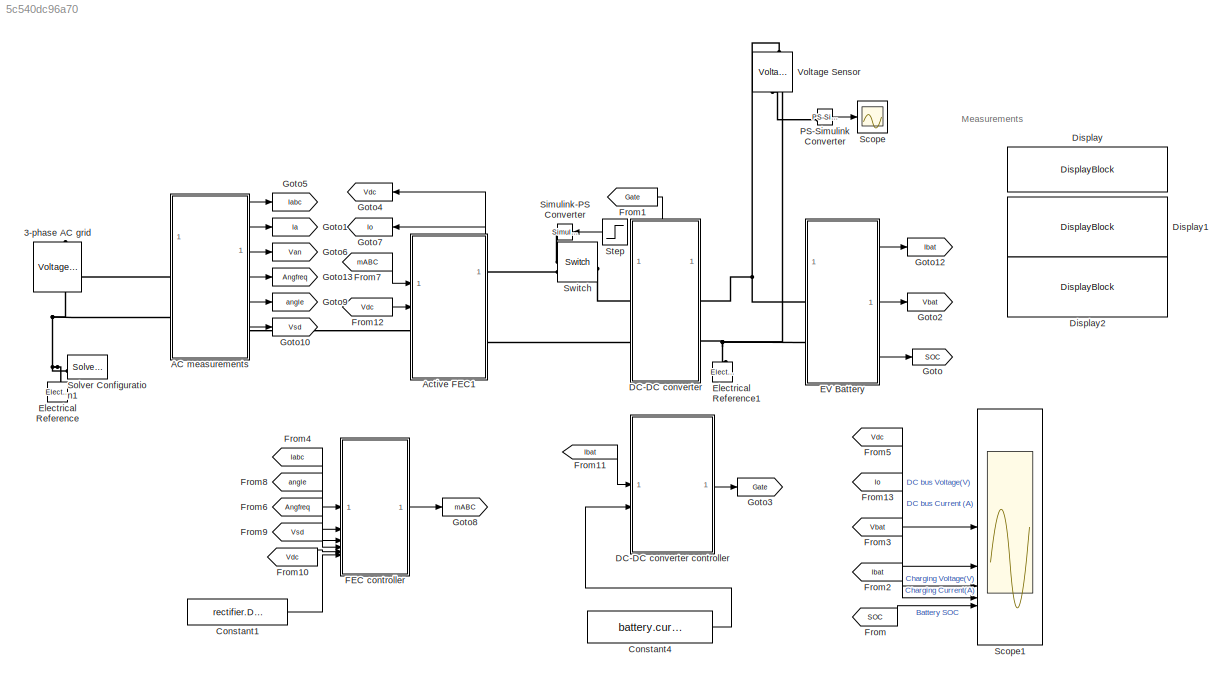
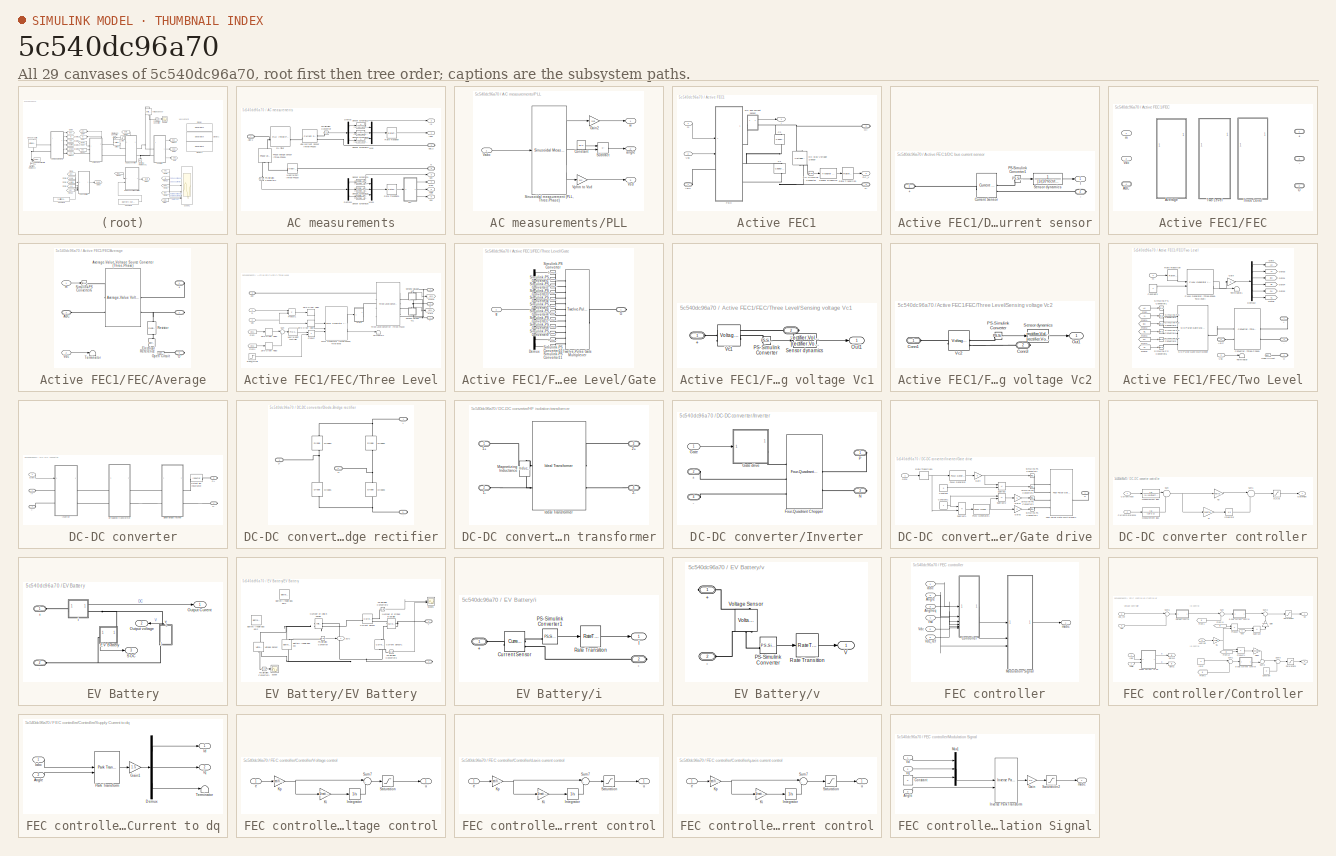
[diagram: thumbnail index - all 29 canvases of the model, root first then tree order]
MODEL slx_5c540dc96a70
KIND model
CONFIG AbsTol = 1e-3
CONFIG EnableMultiTasking = off
CONFIG FixedStep = 1e-6
CONFIG MaxStep = 1/(5*inverter.SwitchFrequency)
CONFIG MinStep = auto
CONFIG RelTol = 1e-3
CONFIG SampleTimeConstraint = Unconstrained
CONFIG SolverName = ode23t
CONFIG StartTime = 0.0
CONFIG StopTime = inf
BLOCK [Reference] 3-phase AC grid  REF=ee_lib/Sources/Voltage
Source
(Three-Phase)
  NameLocation = left
  SourceBlock = ee_lib/Sources/Voltage\nSource\n(Three-Phase)
  SourceType = Voltage\nSource\n(Three-Phase)
BLOCK [SubSystem] AC measurements
BLOCK [PMIOPort] AC measurements/ABC1
  NameLocation = top
  Side = Left
BLOCK [PMIOPort] AC measurements/ABC2
  Port = 2
  Side = Right
BLOCK [Outport] AC measurements/Angle
  Port = 5
BLOCK [Demux] AC measurements/Demux
  Outputs = 3
BLOCK [Demux] AC measurements/Demux1
  Outputs = 3
BLOCK [Outport] AC measurements/Freq
  Port = 4
BLOCK [Outport] AC measurements/Ia
  Port = 2
BLOCK [Outport] AC measurements/Iabc
BLOCK [Reference] AC measurements/Line currrent Ssnsor (Three-Phase)  REF=ee_lib/Sensors &
Transducers/Current Sensor
(Three-Phase)
  SourceBlock = ee_lib/Sensors &\nTransducers/Current Sensor\n(Three-Phase)
  SourceType = Current Sensor\n(Three-Phase)
BLOCK [Mux] AC measurements/Mux
  DisplayOption = bar
  Inputs = 3
BLOCK [Mux] AC measurements/Mux1
  DisplayOption = bar
  Inputs = 3
BLOCK [PMIOPort] AC measurements/N
  NameLocation = top
  Port = 3
  Side = Left
BLOCK [Reference] AC measurements/Neutral Port (Three-Phase)  REF=ee_lib/Connectors &
References/Neutral Port
(Three-Phase)
  NameLocation = top
  SourceBlock = ee_lib/Connectors &\nReferences/Neutral Port\n(Three-Phase)
  SourceType = Neutral Port\n(Three-Phase)
BLOCK [SubSystem] AC measurements/PLL
BLOCK [Constant] AC measurements/PLL/Constant
  Value = pi/2
BLOCK [Gain] AC measurements/PLL/Gain2
  Gain = 2*pi
BLOCK [Reference] AC measurements/PLL/Sinusoidal measurement (PLL, Three-Phase)  REF=eeSinusoidalMeasurement/Sinusoidal Measurement
(PLL, Three-Phase)
  SourceBlock = eeSinusoidalMeasurement/Sinusoidal Measurement\n(PLL, Three-Phase)
  SourceType = Sinusoidal Measurement (PLL, Three-Phase)
BLOCK [Sum] AC measurements/PLL/Subtract
  IconShape = rectangular
  Inputs = -+
BLOCK [Inport] AC measurements/PLL/Vabc
BLOCK [Gain] AC measurements/PLL/Vphm to Vsd
  Gain = 3/2
BLOCK [Outport] AC measurements/PLL/Vsd
  Port = 3
  VectorParamsAs1DForOutWhenUnconnected = off
BLOCK [Outport] AC measurements/PLL/angle
  Port = 2
  VectorParamsAs1DForOutWhenUnconnected = off
BLOCK [Outport] AC measurements/PLL/w
  VectorParamsAs1DForOutWhenUnconnected = off
BLOCK [Reference] AC measurements/PS-Simulink Converter  REF=nesl_utility/PS-Simulink
Converter
  SourceBlock = nesl_utility/PS-Simulink\nConverter
  SourceType = PS-Simulink\nConverter
BLOCK [Reference] AC measurements/PS-Simulink Converter1  REF=nesl_utility/PS-Simulink
Converter
  NameLocation = left
  SourceBlock = nesl_utility/PS-Simulink\nConverter
  SourceType = PS-Simulink\nConverter
BLOCK [Reference] AC measurements/Phase voltage sensor (Three-Phase)  REF=ee_lib/Sensors &
Transducers/Phase Voltage Sensor
(Three-Phase)
  NameLocation = left
  SourceBlock = ee_lib/Sensors &\nTransducers/Phase Voltage Sensor\n(Three-Phase)
  SourceType = Phase Voltage Sensor\n(Three-Phase)
BLOCK [Reference] AC measurements/RL filter  REF=ee_lib/Passive/RLC Assemblies/RLC (Three-Phase)
  SourceBlock = ee_lib/Passive/RLC Assemblies/RLC (Three-Phase)
  SourceType = RLC (Three-Phase)
BLOCK [RateTransition] AC measurements/Rate Transition
  OutPortSampleTime = 1/(10*rectifier.SwitchFrequency)
BLOCK [RateTransition] AC measurements/Rate Transition1
  OutPortSampleTime = rectifier.VoltageSensorT
BLOCK [TransferFcn] AC measurements/Sensor dynamics1
  Denominator = [rectifier.VoltageSensorT 1]
  Numerator = rectifier.VoltageSensorG
BLOCK [TransferFcn] AC measurements/Sensor dynamics2
  Denominator = [1/(10*rectifier.SwitchFrequency) 1]
  Numerator = 1
BLOCK [TransferFcn] AC measurements/Sensor dynamics3
  Denominator = [1/(10*rectifier.SwitchFrequency) 1]
  Numerator = 1
BLOCK [TransferFcn] AC measurements/Sensor dynamics4
  Denominator = [1/(10*rectifier.SwitchFrequency) 1]
  Numerator = 1
BLOCK [TransferFcn] AC measurements/Sensor dynamics5
  Denominator = [rectifier.VoltageSensorT 1]
  Numerator = rectifier.VoltageSensorG
BLOCK [TransferFcn] AC measurements/Sensor dynamics6
  Denominator = [rectifier.VoltageSensorT 1]
  Numerator = rectifier.VoltageSensorG
BLOCK [Outport] AC measurements/Van
  Port = 3
BLOCK [Outport] AC measurements/Vsd
  Port = 6
BLOCK [SubSystem] Active FEC1
  PortSchema = {"entries":[{"content":{"sides":[{"content":{"connectorIds":["In1","In2","LConn1"]},"type":"ConnectorPlacement.EquallySpacedRectSide","uuid":"e0050959-187d-4376-aad2-f8df21a08105"},{"content":{"connectorIds":["RConn1","RConn2"],"side":"RIGHT"},"type":"ConnectorPlacement.EquallySpacedRectSide","uuid":"f7268924-358f-4021-b832-f47ce5e56f0e"},{"content":{"connectorIds":["Out1","Out2"],"side":"TOP"},"t...<+279ch>
BLOCK [PMIOPort] Active FEC1/ABC
  Side = Left
BLOCK [Reference] Active FEC1/C1  REF=fl_lib/Electrical/Electrical Elements/Capacitor
  NameLocation = left
  SourceBlock = fl_lib/Electrical/Electrical Elements/Capacitor
  SourceType = Capacitor
BLOCK [Reference] Active FEC1/C2  REF=fl_lib/Electrical/Electrical Elements/Capacitor
  NameLocation = left
  SourceBlock = fl_lib/Electrical/Electrical Elements/Capacitor
  SourceType = Capacitor
BLOCK [Reference] Active FEC1/DC Bus Voltage Sensor  REF=fl_lib/Electrical/Electrical Sensors/Voltage Sensor
  NameLocation = right
  SourceBlock = fl_lib/Electrical/Electrical Sensors/Voltage Sensor
  SourceType = Voltage Sensor
BLOCK [SubSystem] Active FEC1/DC bus current sensor
BLOCK [PMIOPort] Active FEC1/DC bus current sensor/+
  Side = Left
BLOCK [PMIOPort] Active FEC1/DC bus current sensor/-
  Port = 2
  Side = Right
BLOCK [Reference] Active FEC1/DC bus current sensor/Current Sensor  REF=fl_lib/Electrical/Electrical Sensors/Current Sensor
  SourceBlock = fl_lib/Electrical/Electrical Sensors/Current Sensor
  SourceType = Current Sensor
BLOCK [Outport] Active FEC1/DC bus current sensor/I
BLOCK [Reference] Active FEC1/DC bus current sensor/PS-Simulink Converter1  REF=nesl_utility/PS-Simulink
Converter
  SourceBlock = nesl_utility/PS-Simulink\nConverter
  SourceType = PS-Simulink\nConverter
BLOCK [TransferFcn] Active FEC1/DC bus current sensor/Sensor dynamics
  Denominator = [1/(10*rectifier.SwitchFrequency) 1]
  NameLocation = top
  Numerator = 1
BLOCK [Outport] Active FEC1/DC_V
  Port = 2
BLOCK [SubSystem] Active FEC1/FEC
  Variant = on
  VariantControl = Variant1
BLOCK [PMIOPort] Active FEC1/FEC/+
  NameLocation = top
  Side = Right
BLOCK [PMIOPort] Active FEC1/FEC/-
  NameLocation = top
  Port = 3
  Side = Right
BLOCK [PMIOPort] Active FEC1/FEC/ABC
  NameLocation = top
  Port = 4
  Side = Left
BLOCK [SubSystem] Active FEC1/FEC/Average
  VariantControl = powerCircuit==0
BLOCK [PMIOPort] Active FEC1/FEC/Average/+
  NameLocation = top
  Side = Right
BLOCK [PMIOPort] Active FEC1/FEC/Average/-
  NameLocation = top
  Port = 2
  Side = Right
BLOCK [PMIOPort] Active FEC1/FEC/Average/ABC
  NameLocation = top
  Port = 3
  Side = Left
BLOCK [Reference] Active FEC1/FEC/Average/Average-Value Voltage Source Converter (Three-Phase)  REF=ee_lib/Semiconductors &
Converters/Converters/Average-Value
Voltage Source
Converter
(Three-Phase)
  SourceBlock = ee_lib/Semiconductors &\nConverters/Converters/Average-Value\nVoltage Source\nConverter\n(Three-Phase)
  SourceType = Average-Value\nVoltage Source\nConverter\n(Three-Phase)
BLOCK [Reference] Active FEC1/FEC/Average/Electrical Reference  REF=fl_lib/Electrical/Electrical Elements/Electrical Reference
  NameLocation = left
  SourceBlock = fl_lib/Electrical/Electrical Elements/Electrical Reference
  SourceType = Electrical Reference
BLOCK [PMIOPort] Active FEC1/FEC/Average/O
  NameLocation = top
  Port = 4
  Side = Right
BLOCK [Reference] Active FEC1/FEC/Average/Open Circuit  REF=fl_lib/Electrical/Electrical Elements/Open Circuit
  SourceBlock = fl_lib/Electrical/Electrical Elements/Open Circuit
  SourceType = Open Circuit
BLOCK [Reference] Active FEC1/FEC/Average/Resistor  REF=fl_lib/Electrical/Electrical Elements/Resistor
  NameLocation = left
  SourceBlock = fl_lib/Electrical/Electrical Elements/Resistor
  SourceType = Resistor
BLOCK [Reference] Active FEC1/FEC/Average/Simulink-PS Converter6  REF=nesl_utility/Simulink-PS
Converter
  SourceBlock = nesl_utility/Simulink-PS\nConverter
  SourceType = Simulink-PS\nConverter
BLOCK [Terminator] Active FEC1/FEC/Average/Terminator
BLOCK [Inport] Active FEC1/FEC/Average/Vdc
  Port = 2
BLOCK [Inport] Active FEC1/FEC/Average/m
BLOCK [PMIOPort] Active FEC1/FEC/O
  NameLocation = top
  Port = 2
  Side = Right
BLOCK [SubSystem] Active FEC1/FEC/Three Level
  VariantControl = powerCircuit==2
BLOCK [PMIOPort] Active FEC1/FEC/Three Level/+
  NameLocation = top
  Side = Right
BLOCK [PMIOPort] Active FEC1/FEC/Three Level/-
  NameLocation = top
  Port = 2
  Side = Right
BLOCK [PMIOPort] Active FEC1/FEC/Three Level/ABC
  NameLocation = top
  Port = 3
  Side = Left
BLOCK [From] Active FEC1/FEC/Three Level/From
  GotoTag = Vdc1
BLOCK [From] Active FEC1/FEC/Three Level/From1
  GotoTag = Vdc2
BLOCK [SubSystem] Active FEC1/FEC/Three Level/Gate
BLOCK [Demux] Active FEC1/FEC/Three Level/Gate/Demux
  Outputs = 12
BLOCK [PMIOPort] Active FEC1/FEC/Three Level/Gate/G
  Side = Right
BLOCK [Reference] Active FEC1/FEC/Three Level/Gate/Simulink-PS Converter  REF=nesl_utility/Simulink-PS
Converter
  SourceBlock = nesl_utility/Simulink-PS\nConverter
  SourceType = Simulink-PS\nConverter
BLOCK [Reference] Active FEC1/FEC/Three Level/Gate/Simulink-PS Converter1  REF=nesl_utility/Simulink-PS
Converter
  SourceBlock = nesl_utility/Simulink-PS\nConverter
  SourceType = Simulink-PS\nConverter
BLOCK [Reference] Active FEC1/FEC/Three Level/Gate/Simulink-PS Converter10  REF=nesl_utility/Simulink-PS
Converter
  SourceBlock = nesl_utility/Simulink-PS\nConverter
  SourceType = Simulink-PS\nConverter
BLOCK [Reference] Active FEC1/FEC/Three Level/Gate/Simulink-PS Converter11  REF=nesl_utility/Simulink-PS
Converter
  SourceBlock = nesl_utility/Simulink-PS\nConverter
  SourceType = Simulink-PS\nConverter
BLOCK [Reference] Active FEC1/FEC/Three Level/Gate/Simulink-PS Converter2  REF=nesl_utility/Simulink-PS
Converter
  SourceBlock = nesl_utility/Simulink-PS\nConverter
  SourceType = Simulink-PS\nConverter
BLOCK [Reference] Active FEC1/FEC/Three Level/Gate/Simulink-PS Converter3  REF=nesl_utility/Simulink-PS
Converter
  SourceBlock = nesl_utility/Simulink-PS\nConverter
  SourceType = Simulink-PS\nConverter
BLOCK [Reference] Active FEC1/FEC/Three Level/Gate/Simulink-PS Converter4  REF=nesl_utility/Simulink-PS
Converter
  SourceBlock = nesl_utility/Simulink-PS\nConverter
  SourceType = Simulink-PS\nConverter
BLOCK [Reference] Active FEC1/FEC/Three Level/Gate/Simulink-PS Converter5  REF=nesl_utility/Simulink-PS
Converter
  SourceBlock = nesl_utility/Simulink-PS\nConverter
  SourceType = Simulink-PS\nConverter
BLOCK [Reference] Active FEC1/FEC/Three Level/Gate/Simulink-PS Converter6  REF=nesl_utility/Simulink-PS
Converter
  SourceBlock = nesl_utility/Simulink-PS\nConverter
  SourceType = Simulink-PS\nConverter
BLOCK [Reference] Active FEC1/FEC/Three Level/Gate/Simulink-PS Converter7  REF=nesl_utility/Simulink-PS
Converter
  SourceBlock = nesl_utility/Simulink-PS\nConverter
  SourceType = Simulink-PS\nConverter
BLOCK [Reference] Active FEC1/FEC/Three Level/Gate/Simulink-PS Converter8  REF=nesl_utility/Simulink-PS
Converter
  SourceBlock = nesl_utility/Simulink-PS\nConverter
  SourceType = Simulink-PS\nConverter
BLOCK [Reference] Active FEC1/FEC/Three Level/Gate/Simulink-PS Converter9  REF=nesl_utility/Simulink-PS
Converter
  SourceBlock = nesl_utility/Simulink-PS\nConverter
  SourceType = Simulink-PS\nConverter
BLOCK [Reference] Active FEC1/FEC/Three Level/Gate/Twelve-Pulse Gate Multiplexer  REF=ee_lib/Semiconductors &
Converters/Converters/Twelve-Pulse Gate
Multiplexer
  SourceBlock = ee_lib/Semiconductors &\nConverters/Converters/Twelve-Pulse Gate\nMultiplexer
  SourceType = Twelve-Pulse Gate\nMultiplexer
BLOCK [Inport] Active FEC1/FEC/Three Level/Gate/g
BLOCK [Goto] Active FEC1/FEC/Three Level/Goto
  GotoTag = Vdc1
BLOCK [Goto] Active FEC1/FEC/Three Level/Goto1
  GotoTag = Vdc2
BLOCK [Reference] Active FEC1/FEC/Three Level/Neutral point controller  REF=slpidlib/PID Controller
  SourceBlock = slpidlib/PID Controller
  SourceType = PID 1dof
BLOCK [PMIOPort] Active FEC1/FEC/Three Level/O
  NameLocation = top
  Port = 4
  Side = Right
BLOCK [Reference] Active FEC1/FEC/Three Level/PWM Generator (Three-phase, Three-level)  REF=eePwmGeneratorThreeLevel/PWM Generator
(Three-phase, Three-level)
  SourceBlock = eePwmGeneratorThreeLevel/PWM Generator\n(Three-phase, Three-level)
  SourceType = PWM Generator (three-phase, three-level)
BLOCK [Product] Active FEC1/FEC/Three Level/Product
BLOCK [Product] Active FEC1/FEC/Three Level/Product1
BLOCK [SubSystem] Active FEC1/FEC/Three Level/Sensing voltage Vc1
  NameLocation = top
  ShowPortLabels = none
BLOCK [PMIOPort] Active FEC1/FEC/Three Level/Sensing voltage Vc1/+
  Side = Left
BLOCK [PMIOPort] Active FEC1/FEC/Three Level/Sensing voltage Vc1/-
  NameLocation = top
  Port = 2
  Side = Right
BLOCK [Outport] Active FEC1/FEC/Three Level/Sensing voltage Vc1/Out1
BLOCK [Reference] Active FEC1/FEC/Three Level/Sensing voltage Vc1/PS-Simulink Converter  REF=nesl_utility/PS-Simulink
Converter
  SourceBlock = nesl_utility/PS-Simulink\nConverter
  SourceType = PS-Simulink\nConverter
BLOCK [TransferFcn] Active FEC1/FEC/Three Level/Sensing voltage Vc1/Sensor dynamics
  Denominator = [rectifier.VoltageSensorT 1]
  Numerator = rectifier.VoltageSensorG
BLOCK [Reference] Active FEC1/FEC/Three Level/Sensing voltage Vc1/Vc1  REF=fl_lib/Electrical/Electrical Sensors/Voltage Sensor
  NameLocation = top
  SourceBlock = fl_lib/Electrical/Electrical Sensors/Voltage Sensor
  SourceType = Voltage Sensor
BLOCK [SubSystem] Active FEC1/FEC/Three Level/Sensing voltage Vc2
  NameLocation = top
  ShowPortLabels = none
BLOCK [PMIOPort] Active FEC1/FEC/Three Level/Sensing voltage Vc2/Conn1
  Side = Left
BLOCK [PMIOPort] Active FEC1/FEC/Three Level/Sensing voltage Vc2/Conn3
  Port = 2
  Side = Right
BLOCK [Outport] Active FEC1/FEC/Three Level/Sensing voltage Vc2/Out1
BLOCK [Reference] Active FEC1/FEC/Three Level/Sensing voltage Vc2/PS-Simulink Converter  REF=nesl_utility/PS-Simulink
Converter
  SourceBlock = nesl_utility/PS-Simulink\nConverter
  SourceType = PS-Simulink\nConverter
BLOCK [TransferFcn] Active FEC1/FEC/Three Level/Sensing voltage Vc2/Sensor dynamics
  Denominator = [rectifier.VoltageSensorT 1]
  Numerator = rectifier.VoltageSensorG
BLOCK [Reference] Active FEC1/FEC/Three Level/Sensing voltage Vc2/Vc2  REF=fl_lib/Electrical/Electrical Sensors/Voltage Sensor
  NameLocation = top
  SourceBlock = fl_lib/Electrical/Electrical Sensors/Voltage Sensor
  SourceType = Voltage Sensor
BLOCK [Step] Active FEC1/FEC/Three Level/Step@1cycle
  SampleTime = 1/(10*rectifier.SwitchFrequency)
  Time = 1/rectifier.SystemFrequency
BLOCK [Sum] Active FEC1/FEC/Three Level/Sum
  Inputs = |+-
BLOCK [Terminator] Active FEC1/FEC/Three Level/Terminator1
BLOCK [Reference] Active FEC1/FEC/Three Level/Three-Level Converter (Three-Phase)  REF=ee_lib/Semiconductors &
Converters/Converters/Three-Level
Converter
(Three-Phase)
  NameLocation = top
  SourceBlock = ee_lib/Semiconductors &\nConverters/Converters/Three-Level\nConverter\n(Three-Phase)
  SourceType = Three-Level\nConverter\n(Three-Phase)
BLOCK [Inport] Active FEC1/FEC/Three Level/Vdc
  Port = 2
BLOCK [ZeroOrderHold] Active FEC1/FEC/Three Level/Zero-Order Hold1
  SampleTime = 1/(10*rectifier.SwitchFrequency)
BLOCK [ZeroOrderHold] Active FEC1/FEC/Three Level/Zero-Order Hold2
  SampleTime = 1/(5*rectifier.SwitchFrequency)
BLOCK [ZeroOrderHold] Active FEC1/FEC/Three Level/Zero-Order Hold3
  SampleTime = 1/(5*rectifier.SwitchFrequency)
BLOCK [ZeroOrderHold] Active FEC1/FEC/Three Level/Zero-Order Hold4
  SampleTime = 1/(10*rectifier.SwitchFrequency)
BLOCK [Inport] Active FEC1/FEC/Three Level/m
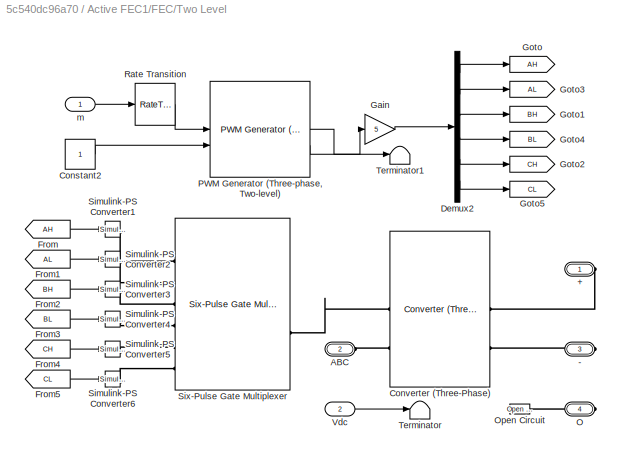
BLOCK [SubSystem] Active FEC1/FEC/Two Level
  VariantControl = powerCircuit==1
BLOCK [PMIOPort] Active FEC1/FEC/Two Level/+
  NameLocation = top
  Side = Right
BLOCK [PMIOPort] Active FEC1/FEC/Two Level/-
  NameLocation = top
  Port = 3
  Side = Right
BLOCK [PMIOPort] Active FEC1/FEC/Two Level/ABC
  NameLocation = top
  Port = 2
  Side = Left
BLOCK [Constant] Active FEC1/FEC/Two Level/Constant2
BLOCK [Reference] Active FEC1/FEC/Two Level/Converter (Three-Phase)  REF=ee_lib/Semiconductors &
Converters/Converters/Converter
(Three-Phase)
  SourceBlock = ee_lib/Semiconductors &\nConverters/Converters/Converter\n(Three-Phase)
  SourceType = Converter\n(Three-Phase)
BLOCK [Demux] Active FEC1/FEC/Two Level/Demux2
  Outputs = 6
BLOCK [From] Active FEC1/FEC/Two Level/From
  GotoTag = AH
BLOCK [From] Active FEC1/FEC/Two Level/From1
  GotoTag = AL
BLOCK [From] Active FEC1/FEC/Two Level/From2
  GotoTag = BH
BLOCK [From] Active FEC1/FEC/Two Level/From3
  GotoTag = BL
BLOCK [From] Active FEC1/FEC/Two Level/From4
  GotoTag = CH
BLOCK [From] Active FEC1/FEC/Two Level/From5
  GotoTag = CL
BLOCK [Gain] Active FEC1/FEC/Two Level/Gain
  Gain = 5
BLOCK [Goto] Active FEC1/FEC/Two Level/Goto
  GotoTag = AH
BLOCK [Goto] Active FEC1/FEC/Two Level/Goto1
  GotoTag = BH
BLOCK [Goto] Active FEC1/FEC/Two Level/Goto2
  GotoTag = CH
BLOCK [Goto] Active FEC1/FEC/Two Level/Goto3
  GotoTag = AL
  NameLocation = right
BLOCK [Goto] Active FEC1/FEC/Two Level/Goto4
  GotoTag = BL
BLOCK [Goto] Active FEC1/FEC/Two Level/Goto5
  GotoTag = CL
BLOCK [PMIOPort] Active FEC1/FEC/Two Level/O
  NameLocation = top
  Port = 4
  Side = Right
BLOCK [Reference] Active FEC1/FEC/Two Level/Open Circuit  REF=fl_lib/Electrical/Electrical Elements/Open Circuit
  SourceBlock = fl_lib/Electrical/Electrical Elements/Open Circuit
  SourceType = Open Circuit
BLOCK [Reference] Active FEC1/FEC/Two Level/PWM Generator (Three-phase, Two-level)  REF=eePwmGeneratorTwoLevel/PWM Generator
(Three-phase, Two-level)
  SourceBlock = eePwmGeneratorTwoLevel/PWM Generator\n(Three-phase, Two-level)
  SourceType = PWM Generator (three-phase, two-level)
BLOCK [RateTransition] Active FEC1/FEC/Two Level/Rate Transition
  OutPortSampleTime = rectifier.VoltageSensorT
BLOCK [Reference] Active FEC1/FEC/Two Level/Simulink-PS Converter1  REF=nesl_utility/Simulink-PS
Converter
  SourceBlock = nesl_utility/Simulink-PS\nConverter
  SourceType = Simulink-PS\nConverter
BLOCK [Reference] Active FEC1/FEC/Two Level/Simulink-PS Converter2  REF=nesl_utility/Simulink-PS
Converter
  SourceBlock = nesl_utility/Simulink-PS\nConverter
  SourceType = Simulink-PS\nConverter
BLOCK [Reference] Active FEC1/FEC/Two Level/Simulink-PS Converter3  REF=nesl_utility/Simulink-PS
Converter
  SourceBlock = nesl_utility/Simulink-PS\nConverter
  SourceType = Simulink-PS\nConverter
BLOCK [Reference] Active FEC1/FEC/Two Level/Simulink-PS Converter4  REF=nesl_utility/Simulink-PS
Converter
  SourceBlock = nesl_utility/Simulink-PS\nConverter
  SourceType = Simulink-PS\nConverter
BLOCK [Reference] Active FEC1/FEC/Two Level/Simulink-PS Converter5  REF=nesl_utility/Simulink-PS
Converter
  SourceBlock = nesl_utility/Simulink-PS\nConverter
  SourceType = Simulink-PS\nConverter
BLOCK [Reference] Active FEC1/FEC/Two Level/Simulink-PS Converter6  REF=nesl_utility/Simulink-PS
Converter
  SourceBlock = nesl_utility/Simulink-PS\nConverter
  SourceType = Simulink-PS\nConverter
BLOCK [Reference] Active FEC1/FEC/Two Level/Six-Pulse Gate Multiplexer  REF=ee_lib/Semiconductors &
Converters/Converters/Six-Pulse Gate
Multiplexer
  SourceBlock = ee_lib/Semiconductors &\nConverters/Converters/Six-Pulse Gate\nMultiplexer
  SourceType = Six-Pulse Gate\nMultiplexer
BLOCK [Terminator] Active FEC1/FEC/Two Level/Terminator
BLOCK [Terminator] Active FEC1/FEC/Two Level/Terminator1
BLOCK [Inport] Active FEC1/FEC/Two Level/Vdc
  Port = 2
BLOCK [Inport] Active FEC1/FEC/Two Level/m
BLOCK [Inport] Active FEC1/FEC/Vdc
  Port = 2
BLOCK [Inport] Active FEC1/FEC/m
BLOCK [Outport] Active FEC1/I
  NameLocation = top
BLOCK [PMIOPort] Active FEC1/O+
  Port = 2
  Side = Right
BLOCK [PMIOPort] Active FEC1/O-
  Port = 3
  Side = Right
BLOCK [Reference] Active FEC1/PS-Simulink Converter  REF=nesl_utility/PS-Simulink
Converter
  SourceBlock = nesl_utility/PS-Simulink\nConverter
  SourceType = PS-Simulink\nConverter
BLOCK [RateTransition] Active FEC1/Rate Transition
  OutPortSampleTime = rectifier.VoltageSensorT
BLOCK [Reference] Active FEC1/Sensor Dynamics  REF=simulink_extras/Additional
Linear/Transfer Fcn
(with initial outputs)
  SourceBlock = simulink_extras/Additional\nLinear/Transfer Fcn\n(with initial outputs)
  SourceType = Transfer Function with Initial Outputs
BLOCK [Inport] Active FEC1/Vdc
  Port = 2
BLOCK [Inport] Active FEC1/m
BLOCK [Constant] Constant1
  Value = rectifier.DCVoltage
BLOCK [Constant] Constant4
  Value = battery.currentReference
BLOCK [SubSystem] DC-DC converter
  PortSchema = {"entries":[{"content":{"sides":[{"content":{"connectorIds":["LConn1","LConn2"]},"type":"ConnectorPlacement.EquallySpacedRectSide","uuid":"cdc417bd-b70c-4a8b-af35-4387024a7132"},{"content":{"connectorIds":["RConn1","RConn2"],"side":"RIGHT"},"type":"ConnectorPlacement.EquallySpacedRectSide","uuid":"7ffe8d7a-a957-4278-941d-227fd05ae124"},{"content":{"connectorIds":["In1"],"side":"TOP"},"type":"Conne...<+268ch>
BLOCK [SubSystem] DC-DC converter controller
BLOCK [Inport] DC-DC converter controller/CurrentInput
BLOCK [Inport] DC-DC converter controller/CurrentReference
  Port = 2
BLOCK [Outport] DC-DC converter controller/GatePulse
BLOCK [Integrator] DC-DC converter controller/Integrator
  LimitOutput = on
  LowerSaturationLimit = -3
  NameLocation = top
  UpperSaturationLimit = 3
BLOCK [Gain] DC-DC converter controller/Ki
  Gain = inverter.controller.ki
  NameLocation = top
BLOCK [Gain] DC-DC converter controller/Kp
  Gain = inverter.controller.kp
  NameLocation = top
BLOCK [TransferFcn] DC-DC converter controller/Measurement lag1
  Denominator = [1e-3 1]
  NameLocation = top
BLOCK [TransferFcn] DC-DC converter controller/Measurement lag2
  Denominator = [1/(10*inverter.SwitchFrequency) 1]
  NameLocation = top
BLOCK [Sum] DC-DC converter controller/Sum
  Inputs = |-+
BLOCK [Sum] DC-DC converter controller/Sum1
  InputSameDT = on
  Inputs = |++
  NameLocation = top
  OutDataTypeStr = Inherit: Same as first input
  SaturateOnIntegerOverflow = on
BLOCK [Saturate] DC-DC converter controller/[0,0.5]
  LowerLimit = 0
BLOCK [SubSystem] DC-DC converter/Diode-Bridge rectifier
BLOCK [PMIOPort] DC-DC converter/Diode-Bridge rectifier/+
  Side = Right
BLOCK [PMIOPort] DC-DC converter/Diode-Bridge rectifier/-
  Port = 3
  Side = Right
BLOCK [Reference] DC-DC converter/Diode-Bridge rectifier/Diode1  REF=fl_lib/Electrical/Electrical Elements/Diode
  NameLocation = right
  SourceBlock = fl_lib/Electrical/Electrical Elements/Diode
  SourceType = Diode
BLOCK [Reference] DC-DC converter/Diode-Bridge rectifier/Diode2  REF=fl_lib/Electrical/Electrical Elements/Diode
  NameLocation = right
  SourceBlock = fl_lib/Electrical/Electrical Elements/Diode
  SourceType = Diode
BLOCK [Reference] DC-DC converter/Diode-Bridge rectifier/Diode3  REF=fl_lib/Electrical/Electrical Elements/Diode
  NameLocation = right
  SourceBlock = fl_lib/Electrical/Electrical Elements/Diode
  SourceType = Diode
BLOCK [Reference] DC-DC converter/Diode-Bridge rectifier/Diode4  REF=fl_lib/Electrical/Electrical Elements/Diode
  NameLocation = right
  SourceBlock = fl_lib/Electrical/Electrical Elements/Diode
  SourceType = Diode
BLOCK [PMIOPort] DC-DC converter/Diode-Bridge rectifier/N
  Port = 4
  Side = Left
BLOCK [PMIOPort] DC-DC converter/Diode-Bridge rectifier/P
  NameLocation = top
  Port = 2
  Side = Left
BLOCK [Inport] DC-DC converter/Gate
BLOCK [SubSystem] DC-DC converter/HF isolation transformer
BLOCK [PMIOPort] DC-DC converter/HF isolation transformer/1+
  NameLocation = top
  Side = Left
BLOCK [PMIOPort] DC-DC converter/HF isolation transformer/1-
  NameLocation = top
  Port = 2
  Side = Left
BLOCK [PMIOPort] DC-DC converter/HF isolation transformer/2+
  Port = 3
  Side = Right
BLOCK [PMIOPort] DC-DC converter/HF isolation transformer/2-
  Port = 4
  Side = Right
BLOCK [Reference] DC-DC converter/HF isolation transformer/Ideal Transformer  REF=fl_lib/Electrical/Electrical Elements/Ideal Transformer
  SourceBlock = fl_lib/Electrical/Electrical Elements/Ideal Transformer
  SourceType = Ideal Transformer
BLOCK [Reference] DC-DC converter/HF isolation transformer/Magnetizing Inductance  REF=ee_lib/Passive/Inductor
  NameLocation = left
  SourceBlock = ee_lib/Passive/Inductor
  SourceType = Inductor
BLOCK [PMIOPort] DC-DC converter/I+
  NameLocation = top
  Side = Left
BLOCK [PMIOPort] DC-DC converter/I-
  NameLocation = top
  Port = 2
  Side = Left
BLOCK [SubSystem] DC-DC converter/Inverter
BLOCK [PMIOPort] DC-DC converter/Inverter/+
  NameLocation = top
  Port = 2
  Side = Left
BLOCK [PMIOPort] DC-DC converter/Inverter/-
  NameLocation = top
  Port = 4
  Side = Left
BLOCK [Reference] DC-DC converter/Inverter/Four-Quadrant Chopper  REF=ee_lib/Semiconductors &
Converters/Converters/Four-Quadrant
Chopper
  SourceBlock = ee_lib/Semiconductors &\nConverters/Converters/Four-Quadrant\nChopper
  SourceType = Four-Quadrant\nChopper
BLOCK [Inport] DC-DC converter/Inverter/Gate
BLOCK [SubSystem] DC-DC converter/Inverter/Gate drive
BLOCK [Constant] DC-DC converter/Inverter/Gate drive/Constant
  Value = 5
BLOCK [Constant] DC-DC converter/Inverter/Gate drive/Constant1
BLOCK [Reference] DC-DC converter/Inverter/Gate drive/Four-Pulse Gate Multiplexer1  REF=ee_lib/Semiconductors &
Converters/Converters/Four-Pulse Gate
Multiplexer
  SourceBlock = ee_lib/Semiconductors &\nConverters/Converters/Four-Pulse Gate\nMultiplexer
  SourceType = Four-Pulse Gate\nMultiplexer
BLOCK [PMIOPort] DC-DC converter/Inverter/Gate drive/G
  Side = Right
BLOCK [Gain] DC-DC converter/Inverter/Gate drive/Gain
  Gain = 5
BLOCK [Gain] DC-DC converter/Inverter/Gate drive/Gain1
  Gain = 5
BLOCK [Gain] DC-DC converter/Inverter/Gate drive/Gain2
  Gain = 5
BLOCK [Inport] DC-DC converter/Inverter/Gate drive/Gate
BLOCK [Reference] DC-DC converter/Inverter/Gate drive/PWM Generator  REF=eePwmGenerator/PWM Generator
  SourceBlock = eePwmGenerator/PWM Generator
  SourceType = PWM Generator
BLOCK [Reference] DC-DC converter/Inverter/Gate drive/PWM Generator1  REF=eePwmGenerator/PWM Generator
  SourceBlock = eePwmGenerator/PWM Generator
  SourceType = PWM Generator
BLOCK [RateTransition] DC-DC converter/Inverter/Gate drive/Rate Transition1
  OutPortSampleTime = 1/(10*inverter.SwitchFrequency)
BLOCK [Reference] DC-DC converter/Inverter/Gate drive/Simulink-PS Converter1  REF=nesl_utility/Simulink-PS
Converter
  SourceBlock = nesl_utility/Simulink-PS\nConverter
  SourceType = Simulink-PS\nConverter
BLOCK [Reference] DC-DC converter/Inverter/Gate drive/Simulink-PS Converter2  REF=nesl_utility/Simulink-PS
Converter
  SourceBlock = nesl_utility/Simulink-PS\nConverter
  SourceType = Simulink-PS\nConverter
BLOCK [Reference] DC-DC converter/Inverter/Gate drive/Simulink-PS Converter3  REF=nesl_utility/Simulink-PS
Converter
  SourceBlock = nesl_utility/Simulink-PS\nConverter
  SourceType = Simulink-PS\nConverter
BLOCK [Reference] DC-DC converter/Inverter/Gate drive/Simulink-PS Converter4  REF=nesl_utility/Simulink-PS
Converter
  SourceBlock = nesl_utility/Simulink-PS\nConverter
  SourceType = Simulink-PS\nConverter
BLOCK [Sum] DC-DC converter/Inverter/Gate drive/Subtract
  IconShape = rectangular
  Inputs = -+
BLOCK [Sum] DC-DC converter/Inverter/Gate drive/Subtract1
  IconShape = rectangular
  Inputs = +-
BLOCK [Sum] DC-DC converter/Inverter/Gate drive/Subtract2
  IconShape = rectangular
  Inputs = +-
BLOCK [PMIOPort] DC-DC converter/Inverter/N
  Port = 3
  Side = Right
BLOCK [PMIOPort] DC-DC converter/Inverter/P
  Side = Right
BLOCK [PMIOPort] DC-DC converter/O+
  Port = 3
  Side = Right
BLOCK [PMIOPort] DC-DC converter/O-
  Port = 4
  Side = Right
BLOCK [Reference] DC-DC converter/Output line Inductance  REF=ee_lib/Passive/Inductor
  SourceBlock = ee_lib/Passive/Inductor
  SourceType = Inductor
BLOCK [DisplayBlock] Display
  Format = Integer
  ShowGrid = off
  Transparency = 1
BLOCK [DisplayBlock] Display1
  Transparency = 1
BLOCK [DisplayBlock] Display2
  Transparency = 1
BLOCK [SubSystem] EV Battery
BLOCK [PMIOPort] EV Battery/+
  Side = Left
BLOCK [PMIOPort] EV Battery/-
  Port = 2
  Side = Left
BLOCK [SubSystem] EV Battery/EV Battery
  NameLocation = left
  PortSchema = {"entries":[{"content":{"sides":[{"content":{"connectorIds":[]},"type":"ConnectorPlacement.EquallySpacedRectSide","uuid":"8e1978f5-f19b-407a-84fd-c941bccecdad"},{"content":{"connectorIds":[],"side":"RIGHT"},"type":"ConnectorPlacement.EquallySpacedRectSide","uuid":"fb49f29d-d34c-48f8-a58f-9f92c5d477c5"},{"content":{"connectorIds":["LConn1"],"side":"TOP"},"type":"ConnectorPlacement.EquallySpacedRect...<+396ch>
BLOCK [PMIOPort] EV Battery/EV Battery/+
  Side = Left
BLOCK [PMIOPort] EV Battery/EV Battery/-
  Port = 2
  Side = Right
BLOCK [Reference] EV Battery/EV Battery/Battery (Table-Based)  REF=batteryecm_lib/Battery
(Table-Based)
  AttributesFormatString = Panasonic:NCR18650PF
  NameLocation = right
  SourceBlock = batteryecm_lib/Battery\n(Table-Based)
  SourceType = Battery\n(Table-Based)
BLOCK [Reference] EV Battery/EV Battery/Battery (Table-Based)1  REF=batteryecm_lib/Battery
(Table-Based)
  AttributesFormatString = Panasonic:NCR18650PF
  Commented = on
  LibrarySourceBlock = batt_lib/Cells/Battery\n(Table-Based)
  NameLocation = right
  SourceBlock = batteryecm_lib/Battery\n(Table-Based)
  SourceType = Battery\n(Table-Based)
BLOCK [Reference] EV Battery/EV Battery/Battery (Table-Based)2  REF=batteryecm_lib/Battery
(Table-Based)
  LibrarySourceBlock = batt_lib/Cells/Battery\n(Table-Based)
  NameLocation = right
  SourceBlock = batteryecm_lib/Battery\n(Table-Based)
  SourceType = Battery\n(Table-Based)
BLOCK [Reference] EV Battery/EV Battery/Current Sensor  REF=fl_lib/Electrical/Electrical Sensors/Current Sensor
  SourceBlock = fl_lib/Electrical/Electrical Sensors/Current Sensor
  SourceType = Current Sensor
BLOCK [Reference] EV Battery/EV Battery/Current Sensor1  REF=fl_lib/Electrical/Electrical Sensors/Current Sensor
  NameLocation = left
  SourceBlock = fl_lib/Electrical/Electrical Sensors/Current Sensor
  SourceType = Current Sensor
BLOCK [Reference] EV Battery/EV Battery/Number of cells in series   REF=fl_lib/Electrical/Electrical Sources/Voltage-Controlled
Voltage Source
  SourceBlock = fl_lib/Electrical/Electrical Sources/Voltage-Controlled\nVoltage Source
  SourceType = Voltage-Controlled\nVoltage Source
BLOCK [Reference] EV Battery/EV Battery/Number of strings in parallel  REF=fl_lib/Electrical/Electrical Sources/Current-Controlled
Current Source
  SourceBlock = fl_lib/Electrical/Electrical Sources/Current-Controlled\nCurrent Source
  SourceType = Current-Controlled\nCurrent Source
BLOCK [Reference] EV Battery/EV Battery/PS-Simulink Converter  REF=nesl_utility/PS-Simulink
Converter
  SourceBlock = nesl_utility/PS-Simulink\nConverter
  SourceType = PS-Simulink\nConverter
BLOCK [Reference] EV Battery/EV Battery/PS-Simulink Converter1  REF=nesl_utility/PS-Simulink
Converter
  SourceBlock = nesl_utility/PS-Simulink\nConverter
  SourceType = PS-Simulink\nConverter
BLOCK [Reference] EV Battery/EV Battery/PS-Simulink Converter2  REF=nesl_utility/PS-Simulink
Converter
  SourceBlock = nesl_utility/PS-Simulink\nConverter
  SourceType = PS-Simulink\nConverter
BLOCK [Reference] EV Battery/EV Battery/PS-Simulink Converter3  REF=nesl_utility/PS-Simulink
Converter
  SourceBlock = nesl_utility/PS-Simulink\nConverter
  SourceType = PS-Simulink\nConverter
BLOCK [Outport] EV Battery/EV Battery/SOC
BLOCK [Scope] EV Battery/EV Battery/Scope
  Floating = off
  NumInputPorts = 1
  ScopeSpecificationString = Simulink.scopes.TimeScopeBlockCfg('CurrentConfiguration', extmgr.ConfigurationSet(extmgr.Configuration('Core','General UI',true),extmgr.Configuration('Core','Source UI',true),extmgr.Configuration('Sources','WiredSimulink',true,'DataLoggingVariableName','ScopeData1'),extmgr.Configuration('Visuals','Time Domain',true,'SerializedDisplays',{struct('MinYLimReal','3.4327','MaxYLimReal','3.86223','YLabel...<+1537ch>
BLOCK [Scope] EV Battery/EV Battery/Scope1
  Floating = off
  NumInputPorts = 2
  ScopeSpecificationString = Simulink.scopes.TimeScopeBlockCfg('CurrentConfiguration', extmgr.ConfigurationSet(extmgr.Configuration('Core','General UI',true),extmgr.Configuration('Core','Source UI',true),extmgr.Configuration('Sources','WiredSimulink',true,'DataLoggingVariableName','ScopeData3'),extmgr.Configuration('Visuals','Time Domain',true,'SerializedDisplays',{struct('MinYLimReal','-19.37408','MaxYLimReal','112.36965','Y...<+1578ch>
BLOCK [Reference] EV Battery/EV Battery/Voltage Sensor  REF=fl_lib/Electrical/Electrical Sensors/Voltage Sensor
  NameLocation = right
  SourceBlock = fl_lib/Electrical/Electrical Sensors/Voltage Sensor
  SourceType = Voltage Sensor
BLOCK [Outport] EV Battery/Output Current
BLOCK [Outport] EV Battery/Output voltage
  NameLocation = top
  Port = 2
BLOCK [Outport] EV Battery/SOC
  Port = 3
BLOCK [SubSystem] EV Battery/i
BLOCK [PMIOPort] EV Battery/i/+
  Side = Left
BLOCK [PMIOPort] EV Battery/i/-
  Port = 2
  Side = Right
BLOCK [Reference] EV Battery/i/Current Sensor  REF=fl_lib/Electrical/Electrical Sensors/Current Sensor
  SourceBlock = fl_lib/Electrical/Electrical Sensors/Current Sensor
  SourceType = Current Sensor
BLOCK [Outport] EV Battery/i/I
BLOCK [Reference] EV Battery/i/PS-Simulink Converter1  REF=nesl_utility/PS-Simulink
Converter
  SourceBlock = nesl_utility/PS-Simulink\nConverter
  SourceType = PS-Simulink\nConverter
BLOCK [RateTransition] EV Battery/i/Rate Transition
  OutPortSampleTime = 1/(10*inverter.SwitchFrequency)
BLOCK [SubSystem] EV Battery/v
  NameLocation = left
BLOCK [PMIOPort] EV Battery/v/+
  Side = Right
BLOCK [PMIOPort] EV Battery/v/-
  Port = 2
  Side = Left
BLOCK [Reference] EV Battery/v/PS-Simulink Converter  REF=nesl_utility/PS-Simulink
Converter
  SourceBlock = nesl_utility/PS-Simulink\nConverter
  SourceType = PS-Simulink\nConverter
BLOCK [RateTransition] EV Battery/v/Rate Transition
  OutPortSampleTime = 1/(10*inverter.SwitchFrequency)
BLOCK [Outport] EV Battery/v/V
BLOCK [Reference] EV Battery/v/Voltage Sensor  REF=fl_lib/Electrical/Electrical Sensors/Voltage Sensor
  NameLocation = right
  SourceBlock = fl_lib/Electrical/Electrical Sensors/Voltage Sensor
  SourceType = Voltage Sensor
BLOCK [Reference] Electrical Reference  REF=fl_lib/Electrical/Electrical Elements/Electrical Reference
  NameLocation = right
  SourceBlock = fl_lib/Electrical/Electrical Elements/Electrical Reference
  SourceType = Electrical Reference
BLOCK [Reference] Electrical Reference1  REF=fl_lib/Electrical/Electrical Elements/Electrical Reference
  NameLocation = right
  SourceBlock = fl_lib/Electrical/Electrical Elements/Electrical Reference
  SourceType = Electrical Reference
BLOCK [SubSystem] FEC controller
BLOCK [Inport] FEC controller/Angfreq
  Port = 3
BLOCK [Inport] FEC controller/Angle
  Port = 2
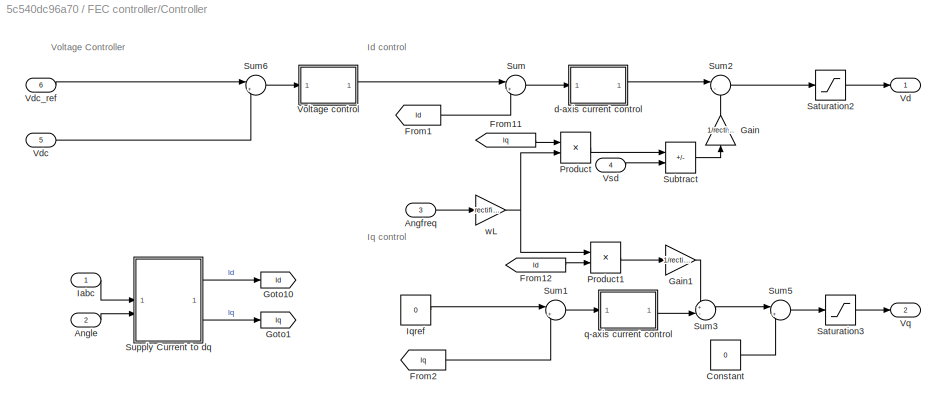
BLOCK [SubSystem] FEC controller/Controller
BLOCK [Inport] FEC controller/Controller/Angfreq
  Port = 3
BLOCK [Inport] FEC controller/Controller/Angle
  Port = 2
BLOCK [Constant] FEC controller/Controller/Constant
  Value = 0
BLOCK [From] FEC controller/Controller/From1
  GotoTag = Id
  TagVisibility = global
BLOCK [From] FEC controller/Controller/From11
  GotoTag = Iq
  TagVisibility = global
BLOCK [From] FEC controller/Controller/From12
  GotoTag = Id
  TagVisibility = global
BLOCK [From] FEC controller/Controller/From2
  GotoTag = Iq
  TagVisibility = global
BLOCK [Gain] FEC controller/Controller/Gain
  Gain = 1/rectifier.G
  NameLocation = right
BLOCK [Gain] FEC controller/Controller/Gain1
  Gain = 1/rectifier.G
BLOCK [Goto] FEC controller/Controller/Goto1
  GotoTag = Iq
  TagVisibility = global
BLOCK [Goto] FEC controller/Controller/Goto10
  GotoTag = Id
  TagVisibility = global
BLOCK [Inport] FEC controller/Controller/Iabc
BLOCK [Constant] FEC controller/Controller/Iqref
  Value = 0
BLOCK [Product] FEC controller/Controller/Product
BLOCK [Product] FEC controller/Controller/Product1
BLOCK [Saturate] FEC controller/Controller/Saturation2
  LowerLimit = -3
  UpperLimit = 4
BLOCK [Saturate] FEC controller/Controller/Saturation3
  LowerLimit = -1
  UpperLimit = 1
BLOCK [Sum] FEC controller/Controller/Subtract
  IconShape = rectangular
  Inputs = -+
BLOCK [Sum] FEC controller/Controller/Sum
  Inputs = |+-
BLOCK [Sum] FEC controller/Controller/Sum1
  Inputs = |+-
  NameLocation = top
BLOCK [Sum] FEC controller/Controller/Sum2
  Inputs = |-+
BLOCK [Sum] FEC controller/Controller/Sum3
  Inputs = +-|
BLOCK [Sum] FEC controller/Controller/Sum5
  Inputs = |++
BLOCK [Sum] FEC controller/Controller/Sum6
  Inputs = |+-
BLOCK [SubSystem] FEC controller/Controller/Supply Current to dq
BLOCK [Inport] FEC controller/Controller/Supply Current to dq/Angle
  Port = 2
BLOCK [Demux] FEC controller/Controller/Supply Current to dq/Demux
  Outputs = 3
BLOCK [Gain] FEC controller/Controller/Supply Current to dq/Gain1
  Gain = 1.5
BLOCK [Inport] FEC controller/Controller/Supply Current to dq/Iabc
BLOCK [Outport] FEC controller/Controller/Supply Current to dq/Id
  VectorParamsAs1DForOutWhenUnconnected = off
BLOCK [Outport] FEC controller/Controller/Supply Current to dq/Iq
  Port = 2
  VectorParamsAs1DForOutWhenUnconnected = off
BLOCK [Reference] FEC controller/Controller/Supply Current to dq/Park Transform  REF=eeTransforms/Park Transform
  SourceBlock = eeTransforms/Park Transform
  SourceType = Park Transform
BLOCK [Terminator] FEC controller/Controller/Supply Current to dq/Terminator
BLOCK [Outport] FEC controller/Controller/Vd
  VectorParamsAs1DForOutWhenUnconnected = off
BLOCK [Inport] FEC controller/Controller/Vdc
  Port = 5
BLOCK [Inport] FEC controller/Controller/Vdc_ref
  Port = 6
BLOCK [SubSystem] FEC controller/Controller/Voltage control
BLOCK [Integrator] FEC controller/Controller/Voltage control/Integrator
  LimitOutput = on
  LowerSaturationLimit = -500
  UpperSaturationLimit = 500
BLOCK [Gain] FEC controller/Controller/Voltage control/Ki
  Gain = 1/rectifier.controller.VoltageT
BLOCK [Gain] FEC controller/Controller/Voltage control/Kp
  Gain = rectifier.controller.VoltageG
BLOCK [Saturate] FEC controller/Controller/Voltage control/Saturation
  LowerLimit = -600
  UpperLimit = 600
BLOCK [Sum] FEC controller/Controller/Voltage control/Sum7
  Inputs = |++
BLOCK [Inport] FEC controller/Controller/Voltage control/e
BLOCK [Outport] FEC controller/Controller/Voltage control/u
  VectorParamsAs1DForOutWhenUnconnected = off
BLOCK [Outport] FEC controller/Controller/Vq
  Port = 2
  VectorParamsAs1DForOutWhenUnconnected = off
BLOCK [Inport] FEC controller/Controller/Vsd
  Port = 4
BLOCK [SubSystem] FEC controller/Controller/d-axis current control
BLOCK [Integrator] FEC controller/Controller/d-axis current control/Integrator
  LimitOutput = on
  LowerSaturationLimit = -10
  UpperSaturationLimit = 10
BLOCK [Gain] FEC controller/Controller/d-axis current control/Ki
  Gain = 1/rectifier.controller.CurrentT
BLOCK [Gain] FEC controller/Controller/d-axis current control/Kp
  Gain = rectifier.controller.CurrentG
BLOCK [Saturate] FEC controller/Controller/d-axis current control/Saturation
  LowerLimit = -4
  UpperLimit = 4
BLOCK [Sum] FEC controller/Controller/d-axis current control/Sum7
  Inputs = |++
BLOCK [Inport] FEC controller/Controller/d-axis current control/e
BLOCK [Outport] FEC controller/Controller/d-axis current control/u
  VectorParamsAs1DForOutWhenUnconnected = off
BLOCK [SubSystem] FEC controller/Controller/q-axis current control
BLOCK [Integrator] FEC controller/Controller/q-axis current control/Integrator
  LimitOutput = on
  LowerSaturationLimit = -8
  UpperSaturationLimit = 8
BLOCK [Gain] FEC controller/Controller/q-axis current control/Ki
  Gain = 1/rectifier.controller.CurrentT
BLOCK [Gain] FEC controller/Controller/q-axis current control/Kp
  Gain = rectifier.controller.CurrentG
BLOCK [Saturate] FEC controller/Controller/q-axis current control/Saturation
  LowerLimit = -3
  UpperLimit = 3
BLOCK [Sum] FEC controller/Controller/q-axis current control/Sum7
  Inputs = |++
BLOCK [Inport] FEC controller/Controller/q-axis current control/e
BLOCK [Outport] FEC controller/Controller/q-axis current control/u
  VectorParamsAs1DForOutWhenUnconnected = off
BLOCK [Gain] FEC controller/Controller/wL
  Gain = rectifier.lineInductance
BLOCK [Inport] FEC controller/Iabc
BLOCK [SubSystem] FEC controller/Modulation Signal
BLOCK [Inport] FEC controller/Modulation Signal/Angle
  NameLocation = left
  Port = 3
BLOCK [Constant] FEC controller/Modulation Signal/Constant
  Value = 0
BLOCK [Gain] FEC controller/Modulation Signal/Gain
  Gain = 2/3
BLOCK [Reference] FEC controller/Modulation Signal/Inverse Park Transform  REF=eeTransforms/Inverse
Park Transform
  SourceBlock = eeTransforms/Inverse\nPark Transform
  SourceType = Inverse Park Transform
BLOCK [Mux] FEC controller/Modulation Signal/Mux1
  DisplayOption = bar
  Inputs = 3
BLOCK [Saturate] FEC controller/Modulation Signal/Saturation2
  LowerLimit = -1
  UpperLimit = 1
BLOCK [Inport] FEC controller/Modulation Signal/Vd
  NameLocation = left
BLOCK [Inport] FEC controller/Modulation Signal/Vq
  NameLocation = left
  Port = 2
BLOCK [Outport] FEC controller/Modulation Signal/mabc
  VectorParamsAs1DForOutWhenUnconnected = off
BLOCK [Inport] FEC controller/Vdc
  Port = 5
BLOCK [Inport] FEC controller/Vdc_ref
  Port = 6
BLOCK [Inport] FEC controller/Vsd
  Port = 4
BLOCK [Outport] FEC controller/mabc
BLOCK [From] From
  GotoTag = SOC
BLOCK [From] From1
  GotoTag = Gate
BLOCK [From] From10
  GotoTag = Vdc
BLOCK [From] From11
  GotoTag = Ibat
BLOCK [From] From12
  GotoTag = Vdc
BLOCK [From] From13
  GotoTag = Io
BLOCK [From] From2
  GotoTag = Ibat
BLOCK [From] From3
  GotoTag = Vbat
BLOCK [From] From4
  GotoTag = Iabc
BLOCK [From] From5
  GotoTag = Vdc
BLOCK [From] From6
  GotoTag = Angfreq
BLOCK [From] From7
  GotoTag = mABC
BLOCK [From] From8
  GotoTag = angle
BLOCK [From] From9
  GotoTag = Vsd
BLOCK [Goto] Goto
  GotoTag = SOC
BLOCK [Goto] Goto1
  GotoTag = Ia
BLOCK [Goto] Goto10
  GotoTag = Vsd
BLOCK [Goto] Goto12
  GotoTag = Ibat
BLOCK [Goto] Goto13
  GotoTag = Angfreq
BLOCK [Goto] Goto2
  GotoTag = Vbat
BLOCK [Goto] Goto3
  GotoTag = Gate
BLOCK [Goto] Goto4
  GotoTag = Vdc
  NameLocation = top
BLOCK [Goto] Goto5
  GotoTag = Iabc
BLOCK [Goto] Goto6
  GotoTag = Van
BLOCK [Goto] Goto7
  GotoTag = Io
  NameLocation = top
BLOCK [Goto] Goto8
  GotoTag = mABC
BLOCK [Goto] Goto9
  GotoTag = angle
BLOCK [Reference] PS-Simulink Converter  REF=nesl_utility/PS-Simulink
Converter
  SourceBlock = nesl_utility/PS-Simulink\nConverter
  SourceType = PS-Simulink\nConverter
BLOCK [Scope] Scope
  Floating = off
  NumInputPorts = 1
  ScopeSpecificationString = Simulink.scopes.TimeScopeBlockCfg('CurrentConfiguration', extmgr.ConfigurationSet(extmgr.Configuration('Core','General UI',true),extmgr.Configuration('Core','Source UI',true),extmgr.Configuration('Sources','WiredSimulink',true,'DataLoggingVariableName','ScopeData1'),extmgr.Configuration('Visuals','Time Domain',true,'SerializedDisplays',{struct('MinYLimReal','277.62522','MaxYLimReal','1011.78046','...<+1562ch>
BLOCK [Scope] Scope1
  Floating = off
  NumInputPorts = 5
  ScopeSpecificationString = Simulink.scopes.TimeScopeBlockCfg('CurrentConfiguration', extmgr.ConfigurationSet(extmgr.Configuration('Core','General UI',true),extmgr.Configuration('Core','Source UI',true),extmgr.Configuration('Sources','WiredSimulink',true,'DataLoggingVariableName','ScopeData2'),extmgr.Configuration('Visuals','Time Domain',true,'SerializedDisplays',{struct('MinYLimReal','530.36903','MaxYLimReal','1094.77875','...<+5555ch>
BLOCK [Reference] Simulink-PS Converter  REF=nesl_utility/Simulink-PS
Converter
  NameLocation = top
  SourceBlock = nesl_utility/Simulink-PS\nConverter
  SourceType = Simulink-PS\nConverter
BLOCK [Reference] Solver Configuration1  REF=nesl_utility/Solver
Configuration
  NameLocation = top
  SourceBlock = nesl_utility/Solver\nConfiguration
  SourceType = Solver\nConfiguration
BLOCK [Step] Step
  NameLocation = top
  SampleTime = 0
  Time = 0.02
BLOCK [Reference] Switch  REF=fl_lib/Electrical/Electrical Elements/Switch
  SourceBlock = fl_lib/Electrical/Electrical Elements/Switch
  SourceType = Switch
BLOCK [Reference] Voltage Sensor  REF=fl_lib/Electrical/Electrical Sensors/Voltage Sensor
  NameLocation = right
  SourceBlock = fl_lib/Electrical/Electrical Sensors/Voltage Sensor
  SourceType = Voltage Sensor
ANNOTATION (root): Measurements
ANNOTATION FEC controller/Controller: Id control
ANNOTATION FEC controller/Controller: Iq control
ANNOTATION FEC controller/Controller: Voltage Controller
LINE AC measurements/Demux1:1 -> AC measurements/Sensor dynamics1:1
LINE AC measurements/Demux1:2 -> AC measurements/Sensor dynamics5:1
LINE AC measurements/Demux1:3 -> AC measurements/Sensor dynamics6:1
LINE AC measurements/Demux:1 -> AC measurements/Sensor dynamics2:1
LINE AC measurements/Demux:2 -> AC measurements/Sensor dynamics3:1
LINE AC measurements/Demux:3 -> AC measurements/Sensor dynamics4:1
LINE AC measurements/Mux1:1 -> AC measurements/Rate Transition1:1
LINE AC measurements/Mux:1 -> AC measurements/Rate Transition:1
LINE AC measurements/PLL/Constant:1 -> AC measurements/PLL/Subtract:1
LINE AC measurements/PLL/Gain2:1 -> AC measurements/PLL/w:1
LINE AC measurements/PLL/Sinusoidal measurement (PLL, Three-Phase):1 -> AC measurements/PLL/Gain2:1
LINE AC measurements/PLL/Sinusoidal measurement (PLL, Three-Phase):2 -> AC measurements/PLL/Subtract:2
LINE AC measurements/PLL/Sinusoidal measurement (PLL, Three-Phase):3 -> AC measurements/PLL/Vphm to Vsd:1
LINE AC measurements/PLL/Subtract:1 -> AC measurements/PLL/angle:1
LINE AC measurements/PLL/Vabc:1 -> AC measurements/PLL/Sinusoidal measurement (PLL, Three-Phase):1
LINE AC measurements/PLL/Vphm to Vsd:1 -> AC measurements/PLL/Vsd:1
LINE AC measurements/PLL:1 -> AC measurements/Freq:1
LINE AC measurements/PLL:2 -> AC measurements/Angle:1
LINE AC measurements/PLL:3 -> AC measurements/Vsd:1
LINE AC measurements/PS-Simulink Converter1:1 -> AC measurements/Demux1:1
LINE AC measurements/PS-Simulink Converter:1 -> AC measurements/Demux:1
LINE AC measurements/Rate Transition1:1 -> AC measurements/PLL:1
LINE AC measurements/Rate Transition:1 -> AC measurements/Iabc:1
NET AC measurements/Sensor dynamics1:1 -> AC measurements/Mux1:1, AC measurements/Van:1
NET AC measurements/Sensor dynamics2:1 -> AC measurements/Ia:1, AC measurements/Mux:1
LINE AC measurements/Sensor dynamics3:1 -> AC measurements/Mux:2
LINE AC measurements/Sensor dynamics4:1 -> AC measurements/Mux:3
LINE AC measurements/Sensor dynamics5:1 -> AC measurements/Mux1:2
LINE AC measurements/Sensor dynamics6:1 -> AC measurements/Mux1:3
LINE AC measurements:1 -> Goto5:1
LINE AC measurements:2 -> Goto1:1
LINE AC measurements:3 -> Goto6:1
LINE AC measurements:4 -> Goto13:1
LINE AC measurements:5 -> Goto9:1
LINE AC measurements:6 -> Goto10:1
LINE Active FEC1/DC bus current sensor/PS-Simulink Converter1:1 -> Active FEC1/DC bus current sensor/Sensor dynamics:1
LINE Active FEC1/DC bus current sensor/Sensor dynamics:1 -> Active FEC1/DC bus current sensor/I:1
LINE Active FEC1/DC bus current sensor:1 -> Active FEC1/I:1
LINE Active FEC1/FEC/Average/Vdc:1 -> Active FEC1/FEC/Average/Terminator:1
LINE Active FEC1/FEC/Average/m:1 -> Active FEC1/FEC/Average/Simulink-PS Converter6:1
LINE Active FEC1/FEC/Three Level/From1:1 -> Active FEC1/FEC/Three Level/Zero-Order Hold3:1
LINE Active FEC1/FEC/Three Level/From:1 -> Active FEC1/FEC/Three Level/Zero-Order Hold2:1
LINE Active FEC1/FEC/Three Level/Gate/Demux:1 -> Active FEC1/FEC/Three Level/Gate/Simulink-PS Converter:1
LINE Active FEC1/FEC/Three Level/Gate/Demux:10 -> Active FEC1/FEC/Three Level/Gate/Simulink-PS Converter9:1
LINE Active FEC1/FEC/Three Level/Gate/Demux:11 -> Active FEC1/FEC/Three Level/Gate/Simulink-PS Converter10:1
LINE Active FEC1/FEC/Three Level/Gate/Demux:12 -> Active FEC1/FEC/Three Level/Gate/Simulink-PS Converter11:1
LINE Active FEC1/FEC/Three Level/Gate/Demux:2 -> Active FEC1/FEC/Three Level/Gate/Simulink-PS Converter1:1
LINE Active FEC1/FEC/Three Level/Gate/Demux:3 -> Active FEC1/FEC/Three Level/Gate/Simulink-PS Converter2:1
LINE Active FEC1/FEC/Three Level/Gate/Demux:4 -> Active FEC1/FEC/Three Level/Gate/Simulink-PS Converter3:1
LINE Active FEC1/FEC/Three Level/Gate/Demux:5 -> Active FEC1/FEC/Three Level/Gate/Simulink-PS Converter4:1
LINE Active FEC1/FEC/Three Level/Gate/Demux:6 -> Active FEC1/FEC/Three Level/Gate/Simulink-PS Converter5:1
LINE Active FEC1/FEC/Three Level/Gate/Demux:7 -> Active FEC1/FEC/Three Level/Gate/Simulink-PS Converter6:1
LINE Active FEC1/FEC/Three Level/Gate/Demux:8 -> Active FEC1/FEC/Three Level/Gate/Simulink-PS Converter7:1
LINE Active FEC1/FEC/Three Level/Gate/Demux:9 -> Active FEC1/FEC/Three Level/Gate/Simulink-PS Converter8:1
LINE Active FEC1/FEC/Three Level/Gate/g:1 -> Active FEC1/FEC/Three Level/Gate/Demux:1
LINE Active FEC1/FEC/Three Level/Neutral point controller:1 -> Active FEC1/FEC/Three Level/Product:1
LINE Active FEC1/FEC/Three Level/PWM Generator (Three-phase, Three-level):1 -> Active FEC1/FEC/Three Level/Gate:1
LINE Active FEC1/FEC/Three Level/PWM Generator (Three-phase, Three-level):2 -> Active FEC1/FEC/Three Level/Terminator1:1
LINE Active FEC1/FEC/Three Level/Product1:1 -> Active FEC1/FEC/Three Level/Zero-Order Hold1:1
LINE Active FEC1/FEC/Three Level/Product:1 -> Active FEC1/FEC/Three Level/PWM Generator (Three-phase, Three-level):3
LINE Active FEC1/FEC/Three Level/Sensing voltage Vc1/PS-Simulink Converter:1 -> Active FEC1/FEC/Three Level/Sensing voltage Vc1/Sensor dynamics:1
LINE Active FEC1/FEC/Three Level/Sensing voltage Vc1/Sensor dynamics:1 -> Active FEC1/FEC/Three Level/Sensing voltage Vc1/Out1:1
LINE Active FEC1/FEC/Three Level/Sensing voltage Vc1:1 -> Active FEC1/FEC/Three Level/Goto:1
LINE Active FEC1/FEC/Three Level/Sensing voltage Vc2/PS-Simulink Converter:1 -> Active FEC1/FEC/Three Level/Sensing voltage Vc2/Sensor dynamics:1
LINE Active FEC1/FEC/Three Level/Sensing voltage Vc2/Sensor dynamics:1 -> Active FEC1/FEC/Three Level/Sensing voltage Vc2/Out1:1
LINE Active FEC1/FEC/Three Level/Sensing voltage Vc2:1 -> Active FEC1/FEC/Three Level/Goto1:1
LINE Active FEC1/FEC/Three Level/Step@1cycle:1 -> Active FEC1/FEC/Three Level/Product:2
LINE Active FEC1/FEC/Three Level/Sum:1 -> Active FEC1/FEC/Three Level/Neutral point controller:1
NET Active FEC1/FEC/Three Level/Vdc:1 -> Active FEC1/FEC/Three Level/Product1:2, Active FEC1/FEC/Three Level/Zero-Order Hold4:1
LINE Active FEC1/FEC/Three Level/Zero-Order Hold1:1 -> Active FEC1/FEC/Three Level/PWM Generator (Three-phase, Three-level):1
LINE Active FEC1/FEC/Three Level/Zero-Order Hold2:1 -> Active FEC1/FEC/Three Level/Sum:1
LINE Active FEC1/FEC/Three Level/Zero-Order Hold3:1 -> Active FEC1/FEC/Three Level/Sum:2
LINE Active FEC1/FEC/Three Level/Zero-Order Hold4:1 -> Active FEC1/FEC/Three Level/PWM Generator (Three-phase, Three-level):2
LINE Active FEC1/FEC/Three Level/m:1 -> Active FEC1/FEC/Three Level/Product1:1
LINE Active FEC1/FEC/Two Level/Constant2:1 -> Active FEC1/FEC/Two Level/PWM Generator (Three-phase, Two-level):2
LINE Active FEC1/FEC/Two Level/Demux2:1 -> Active FEC1/FEC/Two Level/Goto:1
LINE Active FEC1/FEC/Two Level/Demux2:2 -> Active FEC1/FEC/Two Level/Goto3:1
LINE Active FEC1/FEC/Two Level/Demux2:3 -> Active FEC1/FEC/Two Level/Goto1:1
LINE Active FEC1/FEC/Two Level/Demux2:4 -> Active FEC1/FEC/Two Level/Goto4:1
LINE Active FEC1/FEC/Two Level/Demux2:5 -> Active FEC1/FEC/Two Level/Goto2:1
LINE Active FEC1/FEC/Two Level/Demux2:6 -> Active FEC1/FEC/Two Level/Goto5:1
LINE Active FEC1/FEC/Two Level/From1:1 -> Active FEC1/FEC/Two Level/Simulink-PS Converter2:1
LINE Active FEC1/FEC/Two Level/From2:1 -> Active FEC1/FEC/Two Level/Simulink-PS Converter3:1
LINE Active FEC1/FEC/Two Level/From3:1 -> Active FEC1/FEC/Two Level/Simulink-PS Converter4:1
LINE Active FEC1/FEC/Two Level/From4:1 -> Active FEC1/FEC/Two Level/Simulink-PS Converter5:1
LINE Active FEC1/FEC/Two Level/From5:1 -> Active FEC1/FEC/Two Level/Simulink-PS Converter6:1
LINE Active FEC1/FEC/Two Level/From:1 -> Active FEC1/FEC/Two Level/Simulink-PS Converter1:1
LINE Active FEC1/FEC/Two Level/Gain:1 -> Active FEC1/FEC/Two Level/Demux2:1
LINE Active FEC1/FEC/Two Level/PWM Generator (Three-phase, Two-level):1 -> Active FEC1/FEC/Two Level/Gain:1
LINE Active FEC1/FEC/Two Level/PWM Generator (Three-phase, Two-level):2 -> Active FEC1/FEC/Two Level/Terminator1:1
LINE Active FEC1/FEC/Two Level/Rate Transition:1 -> Active FEC1/FEC/Two Level/PWM Generator (Three-phase, Two-level):1
LINE Active FEC1/FEC/Two Level/Vdc:1 -> Active FEC1/FEC/Two Level/Terminator:1
LINE Active FEC1/FEC/Two Level/m:1 -> Active FEC1/FEC/Two Level/Rate Transition:1
LINE Active FEC1/PS-Simulink Converter:1 -> Active FEC1/Sensor Dynamics:1
LINE Active FEC1/Rate Transition:1 -> Active FEC1/DC_V:1
LINE Active FEC1/Sensor Dynamics:1 -> Active FEC1/Rate Transition:1
LINE Active FEC1/Vdc:1 -> Active FEC1/FEC:2
LINE Active FEC1/m:1 -> Active FEC1/FEC:1
LINE Active FEC1:1 -> Goto7:1
LINE Active FEC1:2 -> Goto4:1
LINE Constant1:1 -> FEC controller:6
LINE Constant4:1 -> DC-DC converter controller:2
LINE DC-DC converter controller/CurrentInput:1 -> DC-DC converter controller/Measurement lag2:1
LINE DC-DC converter controller/CurrentReference:1 -> DC-DC converter controller/Measurement lag1:1
LINE DC-DC converter controller/Integrator:1 -> DC-DC converter controller/Sum1:2
LINE DC-DC converter controller/Ki:1 -> DC-DC converter controller/Integrator:1
LINE DC-DC converter controller/Kp:1 -> DC-DC converter controller/Sum1:1
LINE DC-DC converter controller/Measurement lag1:1 -> DC-DC converter controller/Sum:2
LINE DC-DC converter controller/Measurement lag2:1 -> DC-DC converter controller/Sum:1
LINE DC-DC converter controller/Sum1:1 -> DC-DC converter controller/[0,0.5]:1
NET DC-DC converter controller/Sum:1 -> DC-DC converter controller/Ki:1, DC-DC converter controller/Kp:1
LINE DC-DC converter controller/[0,0.5]:1 -> DC-DC converter controller/GatePulse:1
LINE DC-DC converter controller:1 -> Goto3:1
LINE DC-DC converter/Gate:1 -> DC-DC converter/Inverter:1
NET DC-DC converter/Inverter/Gate drive/Constant1:1 -> DC-DC converter/Inverter/Gate drive/Subtract1:1, DC-DC converter/Inverter/Gate drive/Subtract2:1
LINE DC-DC converter/Inverter/Gate drive/Constant:1 -> DC-DC converter/Inverter/Gate drive/Subtract:2
LINE DC-DC converter/Inverter/Gate drive/Gain1:1 -> DC-DC converter/Inverter/Gate drive/Simulink-PS Converter3:1
LINE DC-DC converter/Inverter/Gate drive/Gain2:1 -> DC-DC converter/Inverter/Gate drive/Simulink-PS Converter4:1
NET DC-DC converter/Inverter/Gate drive/Gain:1 -> DC-DC converter/Inverter/Gate drive/Simulink-PS Converter1:1, DC-DC converter/Inverter/Gate drive/Subtract:1
LINE DC-DC converter/Inverter/Gate drive/Gate:1 -> DC-DC converter/Inverter/Gate drive/Rate Transition1:1
NET DC-DC converter/Inverter/Gate drive/PWM Generator1:1 -> DC-DC converter/Inverter/Gate drive/Gain2:1, DC-DC converter/Inverter/Gate drive/Subtract2:2
LINE DC-DC converter/Inverter/Gate drive/PWM Generator:1 -> DC-DC converter/Inverter/Gate drive/Gain:1
NET DC-DC converter/Inverter/Gate drive/Rate Transition1:1 -> DC-DC converter/Inverter/Gate drive/PWM Generator:1, DC-DC converter/Inverter/Gate drive/Subtract1:2
LINE DC-DC converter/Inverter/Gate drive/Subtract1:1 -> DC-DC converter/Inverter/Gate drive/PWM Generator1:1
LINE DC-DC converter/Inverter/Gate drive/Subtract2:1 -> DC-DC converter/Inverter/Gate drive/Gain1:1
LINE DC-DC converter/Inverter/Gate drive/Subtract:1 -> DC-DC converter/Inverter/Gate drive/Simulink-PS Converter2:1
LINE DC-DC converter/Inverter/Gate:1 -> DC-DC converter/Inverter/Gate drive:1
LINE EV Battery/EV Battery/PS-Simulink Converter1:1 -> EV Battery/EV Battery/Scope:1
LINE EV Battery/EV Battery/PS-Simulink Converter2:1 -> EV Battery/EV Battery/Scope1:1
LINE EV Battery/EV Battery/PS-Simulink Converter3:1 -> EV Battery/EV Battery/Scope1:2
LINE EV Battery/EV Battery/PS-Simulink Converter:1 -> EV Battery/EV Battery/SOC:1
LINE EV Battery/EV Battery:1 -> EV Battery/SOC:1
LINE EV Battery/i/PS-Simulink Converter1:1 -> EV Battery/i/Rate Transition:1
LINE EV Battery/i/Rate Transition:1 -> EV Battery/i/I:1
LINE EV Battery/i:1 -> EV Battery/Output Current:1
LINE EV Battery/v/PS-Simulink Converter:1 -> EV Battery/v/Rate Transition:1
LINE EV Battery/v/Rate Transition:1 -> EV Battery/v/V:1
LINE EV Battery/v:1 -> EV Battery/Output voltage:1
LINE EV Battery:1 -> Goto12:1
LINE EV Battery:2 -> Goto2:1
LINE EV Battery:3 -> Goto:1
LINE FEC controller/Angfreq:1 -> FEC controller/Controller:3
NET FEC controller/Angle:1 -> FEC controller/Controller:2, FEC controller/Modulation Signal:3
LINE FEC controller/Controller/Angfreq:1 -> FEC controller/Controller/wL:1
LINE FEC controller/Controller/Angle:1 -> FEC controller/Controller/Supply Current to dq:2
LINE FEC controller/Controller/Constant:1 -> FEC controller/Controller/Sum5:2
LINE FEC controller/Controller/From11:1 -> FEC controller/Controller/Product:1
LINE FEC controller/Controller/From12:1 -> FEC controller/Controller/Product1:2
LINE FEC controller/Controller/From1:1 -> FEC controller/Controller/Sum:2
LINE FEC controller/Controller/From2:1 -> FEC controller/Controller/Sum1:2
LINE FEC controller/Controller/Gain1:1 -> FEC controller/Controller/Sum3:1
LINE FEC controller/Controller/Gain:1 -> FEC controller/Controller/Sum2:2
LINE FEC controller/Controller/Iabc:1 -> FEC controller/Controller/Supply Current to dq:1
LINE FEC controller/Controller/Iqref:1 -> FEC controller/Controller/Sum1:1
LINE FEC controller/Controller/Product1:1 -> FEC controller/Controller/Gain1:1
LINE FEC controller/Controller/Product:1 -> FEC controller/Controller/Subtract:1
LINE FEC controller/Controller/Saturation2:1 -> FEC controller/Controller/Vd:1
LINE FEC controller/Controller/Saturation3:1 -> FEC controller/Controller/Vq:1
LINE FEC controller/Controller/Subtract:1 -> FEC controller/Controller/Gain:1
LINE FEC controller/Controller/Sum1:1 -> FEC controller/Controller/q-axis current control:1
LINE FEC controller/Controller/Sum2:1 -> FEC controller/Controller/Saturation2:1
LINE FEC controller/Controller/Sum3:1 -> FEC controller/Controller/Sum5:1
LINE FEC controller/Controller/Sum5:1 -> FEC controller/Controller/Saturation3:1
LINE FEC controller/Controller/Sum6:1 -> FEC controller/Controller/Voltage control:1
LINE FEC controller/Controller/Sum:1 -> FEC controller/Controller/d-axis current control:1
LINE FEC controller/Controller/Supply Current to dq/Angle:1 -> FEC controller/Controller/Supply Current to dq/Park Transform:2
LINE FEC controller/Controller/Supply Current to dq/Demux:1 -> FEC controller/Controller/Supply Current to dq/Id:1
LINE FEC controller/Controller/Supply Current to dq/Demux:2 -> FEC controller/Controller/Supply Current to dq/Iq:1
LINE FEC controller/Controller/Supply Current to dq/Demux:3 -> FEC controller/Controller/Supply Current to dq/Terminator:1
LINE FEC controller/Controller/Supply Current to dq/Gain1:1 -> FEC controller/Controller/Supply Current to dq/Demux:1
LINE FEC controller/Controller/Supply Current to dq/Iabc:1 -> FEC controller/Controller/Supply Current to dq/Park Transform:1
LINE FEC controller/Controller/Supply Current to dq/Park Transform:1 -> FEC controller/Controller/Supply Current to dq/Gain1:1
LINE FEC controller/Controller/Supply Current to dq:1 -> FEC controller/Controller/Goto10:1
LINE FEC controller/Controller/Supply Current to dq:2 -> FEC controller/Controller/Goto1:1
LINE FEC controller/Controller/Vdc:1 -> FEC controller/Controller/Sum6:2
LINE FEC controller/Controller/Vdc_ref:1 -> FEC controller/Controller/Sum6:1
LINE FEC controller/Controller/Voltage control/Integrator:1 -> FEC controller/Controller/Voltage control/Sum7:2
LINE FEC controller/Controller/Voltage control/Ki:1 -> FEC controller/Controller/Voltage control/Integrator:1
NET FEC controller/Controller/Voltage control/Kp:1 -> FEC controller/Controller/Voltage control/Ki:1, FEC controller/Controller/Voltage control/Sum7:1
LINE FEC controller/Controller/Voltage control/Saturation:1 -> FEC controller/Controller/Voltage control/u:1
LINE FEC controller/Controller/Voltage control/Sum7:1 -> FEC controller/Controller/Voltage control/Saturation:1
LINE FEC controller/Controller/Voltage control/e:1 -> FEC controller/Controller/Voltage control/Kp:1
LINE FEC controller/Controller/Voltage control:1 -> FEC controller/Controller/Sum:1
LINE FEC controller/Controller/Vsd:1 -> FEC controller/Controller/Subtract:2
LINE FEC controller/Controller/d-axis current control/Integrator:1 -> FEC controller/Controller/d-axis current control/Sum7:2
LINE FEC controller/Controller/d-axis current control/Ki:1 -> FEC controller/Controller/d-axis current control/Integrator:1
NET FEC controller/Controller/d-axis current control/Kp:1 -> FEC controller/Controller/d-axis current control/Ki:1, FEC controller/Controller/d-axis current control/Sum7:1
LINE FEC controller/Controller/d-axis current control/Saturation:1 -> FEC controller/Controller/d-axis current control/u:1
LINE FEC controller/Controller/d-axis current control/Sum7:1 -> FEC controller/Controller/d-axis current control/Saturation:1
LINE FEC controller/Controller/d-axis current control/e:1 -> FEC controller/Controller/d-axis current control/Kp:1
LINE FEC controller/Controller/d-axis current control:1 -> FEC controller/Controller/Sum2:1
LINE FEC controller/Controller/q-axis current control/Integrator:1 -> FEC controller/Controller/q-axis current control/Sum7:2
LINE FEC controller/Controller/q-axis current control/Ki:1 -> FEC controller/Controller/q-axis current control/Integrator:1
NET FEC controller/Controller/q-axis current control/Kp:1 -> FEC controller/Controller/q-axis current control/Ki:1, FEC controller/Controller/q-axis current control/Sum7:1
LINE FEC controller/Controller/q-axis current control/Saturation:1 -> FEC controller/Controller/q-axis current control/u:1
LINE FEC controller/Controller/q-axis current control/Sum7:1 -> FEC controller/Controller/q-axis current control/Saturation:1
LINE FEC controller/Controller/q-axis current control/e:1 -> FEC controller/Controller/q-axis current control/Kp:1
LINE FEC controller/Controller/q-axis current control:1 -> FEC controller/Controller/Sum3:2
NET FEC controller/Controller/wL:1 -> FEC controller/Controller/Product1:1, FEC controller/Controller/Product:2
LINE FEC controller/Controller:1 -> FEC controller/Modulation Signal:1
LINE FEC controller/Controller:2 -> FEC controller/Modulation Signal:2
LINE FEC controller/Iabc:1 -> FEC controller/Controller:1
LINE FEC controller/Modulation Signal/Angle:1 -> FEC controller/Modulation Signal/Inverse Park Transform:2
LINE FEC controller/Modulation Signal/Constant:1 -> FEC controller/Modulation Signal/Mux1:3
LINE FEC controller/Modulation Signal/Gain:1 -> FEC controller/Modulation Signal/Saturation2:1
LINE FEC controller/Modulation Signal/Inverse Park Transform:1 -> FEC controller/Modulation Signal/Gain:1
LINE FEC controller/Modulation Signal/Mux1:1 -> FEC controller/Modulation Signal/Inverse Park Transform:1
LINE FEC controller/Modulation Signal/Saturation2:1 -> FEC controller/Modulation Signal/mabc:1
LINE FEC controller/Modulation Signal/Vd:1 -> FEC controller/Modulation Signal/Mux1:1
LINE FEC controller/Modulation Signal/Vq:1 -> FEC controller/Modulation Signal/Mux1:2
LINE FEC controller/Modulation Signal:1 -> FEC controller/mabc:1
LINE FEC controller/Vdc:1 -> FEC controller/Controller:5
LINE FEC controller/Vdc_ref:1 -> FEC controller/Controller:6
LINE FEC controller/Vsd:1 -> FEC controller/Controller:4
LINE FEC controller:1 -> Goto8:1
LINE From10:1 -> FEC controller:5
LINE From11:1 -> DC-DC converter controller:1
LINE From12:1 -> Active FEC1:2
LINE From13:1 -> Scope1:2
LINE From1:1 -> DC-DC converter:1
LINE From2:1 -> Scope1:4
LINE From3:1 -> Scope1:3
LINE From4:1 -> FEC controller:1
LINE From5:1 -> Scope1:1
LINE From6:1 -> FEC controller:3
LINE From7:1 -> Active FEC1:1
LINE From8:1 -> FEC controller:2
LINE From9:1 -> FEC controller:4
LINE From:1 -> Scope1:5
LINE PS-Simulink Converter:1 -> Scope:1
LINE Step:1 -> Simulink-PS Converter:1
PNET net1: 3-phase AC grid:LConn1 -- AC measurements:LConn2 -- Electrical Reference:LConn1 -- Solver Configuration1:RConn1
PLINE 3-phase AC grid:RConn1 -- AC measurements:LConn1
PNET net2: AC measurements/ABC1:RConn1 -- AC measurements/Phase voltage sensor (Three-Phase):LConn1 -- AC measurements/RL filter:LConn1
PLINE AC measurements/ABC2:RConn1 -- AC measurements/Line currrent Ssnsor (Three-Phase):RConn2
PLINE AC measurements/Line currrent Ssnsor (Three-Phase):LConn1 -- AC measurements/RL filter:RConn1
PLINE AC measurements/Line currrent Ssnsor (Three-Phase):RConn1 -- AC measurements/PS-Simulink Converter:LConn1
PLINE AC measurements/N:RConn1 -- AC measurements/Neutral Port (Three-Phase):RConn1
PLINE AC measurements/Neutral Port (Three-Phase):LConn1 -- AC measurements/Phase voltage sensor (Three-Phase):RConn2
PLINE AC measurements/PS-Simulink Converter1:LConn1 -- AC measurements/Phase voltage sensor (Three-Phase):RConn1
PLINE AC measurements:RConn1 -- Active FEC1:LConn1
PLINE Active FEC1/ABC:RConn1 -- Active FEC1/FEC:LConn1
PNET net3: Active FEC1/C1:LConn1 -- Active FEC1/C2:RConn1 -- Active FEC1/FEC:RConn2
PNET net4: Active FEC1/C1:RConn1 -- Active FEC1/DC Bus Voltage Sensor:RConn2 -- Active FEC1/FEC:RConn3 -- Active FEC1/O-:RConn1
PNET net5: Active FEC1/C2:LConn1 -- Active FEC1/DC Bus Voltage Sensor:LConn1 -- Active FEC1/DC bus current sensor:RConn1 -- Active FEC1/O+:RConn1
PLINE Active FEC1/DC Bus Voltage Sensor:RConn1 -- Active FEC1/PS-Simulink Converter:LConn1
PLINE Active FEC1/DC bus current sensor/+:RConn1 -- Active FEC1/DC bus current sensor/Current Sensor:LConn1
PLINE Active FEC1/DC bus current sensor/-:RConn1 -- Active FEC1/DC bus current sensor/Current Sensor:RConn2
PLINE Active FEC1/DC bus current sensor/Current Sensor:RConn1 -- Active FEC1/DC bus current sensor/PS-Simulink Converter1:LConn1
PLINE Active FEC1/DC bus current sensor:LConn1 -- Active FEC1/FEC:RConn1
PLINE Active FEC1/FEC/Average/+:RConn1 -- Active FEC1/FEC/Average/Average-Value Voltage Source Converter (Three-Phase):RConn1
PNET net6: Active FEC1/FEC/Average/-:RConn1 -- Active FEC1/FEC/Average/Average-Value Voltage Source Converter (Three-Phase):RConn2 -- Active FEC1/FEC/Average/Resistor:LConn1
PLINE Active FEC1/FEC/Average/ABC:RConn1 -- Active FEC1/FEC/Average/Average-Value Voltage Source Converter (Three-Phase):LConn2
PLINE Active FEC1/FEC/Average/Average-Value Voltage Source Converter (Three-Phase):LConn1 -- Active FEC1/FEC/Average/Simulink-PS Converter6:RConn1
PLINE Active FEC1/FEC/Average/Electrical Reference:LConn1 -- Active FEC1/FEC/Average/Resistor:RConn1
PLINE Active FEC1/FEC/Average/O:RConn1 -- Active FEC1/FEC/Average/Open Circuit:LConn1
PNET net7: Active FEC1/FEC/Three Level/+:RConn1 -- Active FEC1/FEC/Three Level/Sensing voltage Vc1:LConn1 -- Active FEC1/FEC/Three Level/Three-Level Converter (Three-Phase):RConn1
PNET net8: Active FEC1/FEC/Three Level/-:RConn1 -- Active FEC1/FEC/Three Level/Sensing voltage Vc2:RConn1 -- Active FEC1/FEC/Three Level/Three-Level Converter (Three-Phase):RConn3
PLINE Active FEC1/FEC/Three Level/ABC:RConn1 -- Active FEC1/FEC/Three Level/Three-Level Converter (Three-Phase):LConn2
PLINE Active FEC1/FEC/Three Level/Gate/G:RConn1 -- Active FEC1/FEC/Three Level/Gate/Twelve-Pulse Gate Multiplexer:RConn1
PLINE Active FEC1/FEC/Three Level/Gate/Simulink-PS Converter10:RConn1 -- Active FEC1/FEC/Three Level/Gate/Twelve-Pulse Gate Multiplexer:LConn11
PLINE Active FEC1/FEC/Three Level/Gate/Simulink-PS Converter11:RConn1 -- Active FEC1/FEC/Three Level/Gate/Twelve-Pulse Gate Multiplexer:LConn12
PLINE Active FEC1/FEC/Three Level/Gate/Simulink-PS Converter1:RConn1 -- Active FEC1/FEC/Three Level/Gate/Twelve-Pulse Gate Multiplexer:LConn2
PLINE Active FEC1/FEC/Three Level/Gate/Simulink-PS Converter2:RConn1 -- Active FEC1/FEC/Three Level/Gate/Twelve-Pulse Gate Multiplexer:LConn3
PLINE Active FEC1/FEC/Three Level/Gate/Simulink-PS Converter3:RConn1 -- Active FEC1/FEC/Three Level/Gate/Twelve-Pulse Gate Multiplexer:LConn4
PLINE Active FEC1/FEC/Three Level/Gate/Simulink-PS Converter4:RConn1 -- Active FEC1/FEC/Three Level/Gate/Twelve-Pulse Gate Multiplexer:LConn5
PLINE Active FEC1/FEC/Three Level/Gate/Simulink-PS Converter5:RConn1 -- Active FEC1/FEC/Three Level/Gate/Twelve-Pulse Gate Multiplexer:LConn6
PLINE Active FEC1/FEC/Three Level/Gate/Simulink-PS Converter6:RConn1 -- Active FEC1/FEC/Three Level/Gate/Twelve-Pulse Gate Multiplexer:LConn7
PLINE Active FEC1/FEC/Three Level/Gate/Simulink-PS Converter7:RConn1 -- Active FEC1/FEC/Three Level/Gate/Twelve-Pulse Gate Multiplexer:LConn8
PLINE Active FEC1/FEC/Three Level/Gate/Simulink-PS Converter8:RConn1 -- Active FEC1/FEC/Three Level/Gate/Twelve-Pulse Gate Multiplexer:LConn9
PLINE Active FEC1/FEC/Three Level/Gate/Simulink-PS Converter9:RConn1 -- Active FEC1/FEC/Three Level/Gate/Twelve-Pulse Gate Multiplexer:LConn10
PLINE Active FEC1/FEC/Three Level/Gate/Simulink-PS Converter:RConn1 -- Active FEC1/FEC/Three Level/Gate/Twelve-Pulse Gate Multiplexer:LConn1
PLINE Active FEC1/FEC/Three Level/Gate:RConn1 -- Active FEC1/FEC/Three Level/Three-Level Converter (Three-Phase):LConn1
PNET net9: Active FEC1/FEC/Three Level/O:RConn1 -- Active FEC1/FEC/Three Level/Sensing voltage Vc1:RConn1 -- Active FEC1/FEC/Three Level/Sensing voltage Vc2:LConn1 -- Active FEC1/FEC/Three Level/Three-Level Converter (Three-Phase):RConn2
PLINE Active FEC1/FEC/Three Level/Sensing voltage Vc1/+:RConn1 -- Active FEC1/FEC/Three Level/Sensing voltage Vc1/Vc1:LConn1
PLINE Active FEC1/FEC/Three Level/Sensing voltage Vc1/-:RConn1 -- Active FEC1/FEC/Three Level/Sensing voltage Vc1/Vc1:RConn2
PLINE Active FEC1/FEC/Three Level/Sensing voltage Vc1/PS-Simulink Converter:LConn1 -- Active FEC1/FEC/Three Level/Sensing voltage Vc1/Vc1:RConn1
PLINE Active FEC1/FEC/Three Level/Sensing voltage Vc2/Conn1:RConn1 -- Active FEC1/FEC/Three Level/Sensing voltage Vc2/Vc2:LConn1
PLINE Active FEC1/FEC/Three Level/Sensing voltage Vc2/Conn3:RConn1 -- Active FEC1/FEC/Three Level/Sensing voltage Vc2/Vc2:RConn2
PLINE Active FEC1/FEC/Three Level/Sensing voltage Vc2/PS-Simulink Converter:LConn1 -- Active FEC1/FEC/Three Level/Sensing voltage Vc2/Vc2:RConn1
PLINE Active FEC1/FEC/Two Level/+:RConn1 -- Active FEC1/FEC/Two Level/Converter (Three-Phase):RConn1
PLINE Active FEC1/FEC/Two Level/-:RConn1 -- Active FEC1/FEC/Two Level/Converter (Three-Phase):RConn2
PLINE Active FEC1/FEC/Two Level/ABC:RConn1 -- Active FEC1/FEC/Two Level/Converter (Three-Phase):LConn2
PLINE Active FEC1/FEC/Two Level/Converter (Three-Phase):LConn1 -- Active FEC1/FEC/Two Level/Six-Pulse Gate Multiplexer:RConn1
PLINE Active FEC1/FEC/Two Level/O:RConn1 -- Active FEC1/FEC/Two Level/Open Circuit:LConn1
PLINE Active FEC1/FEC/Two Level/Simulink-PS Converter1:RConn1 -- Active FEC1/FEC/Two Level/Six-Pulse Gate Multiplexer:LConn1
PLINE Active FEC1/FEC/Two Level/Simulink-PS Converter2:RConn1 -- Active FEC1/FEC/Two Level/Six-Pulse Gate Multiplexer:LConn2
PLINE Active FEC1/FEC/Two Level/Simulink-PS Converter3:RConn1 -- Active FEC1/FEC/Two Level/Six-Pulse Gate Multiplexer:LConn3
PLINE Active FEC1/FEC/Two Level/Simulink-PS Converter4:RConn1 -- Active FEC1/FEC/Two Level/Six-Pulse Gate Multiplexer:LConn4
PLINE Active FEC1/FEC/Two Level/Simulink-PS Converter5:RConn1 -- Active FEC1/FEC/Two Level/Six-Pulse Gate Multiplexer:LConn5
PLINE Active FEC1/FEC/Two Level/Simulink-PS Converter6:RConn1 -- Active FEC1/FEC/Two Level/Six-Pulse Gate Multiplexer:LConn6
PLINE Active FEC1:RConn1 -- Switch:RConn2
PLINE Active FEC1:RConn2 -- DC-DC converter:LConn2
PNET net10: DC-DC converter/Diode-Bridge rectifier/+:RConn1 -- DC-DC converter/Diode-Bridge rectifier/Diode2:RConn1 -- DC-DC converter/Diode-Bridge rectifier/Diode4:RConn1
PNET net11: DC-DC converter/Diode-Bridge rectifier/-:RConn1 -- DC-DC converter/Diode-Bridge rectifier/Diode1:LConn1 -- DC-DC converter/Diode-Bridge rectifier/Diode3:LConn1
PNET net12: DC-DC converter/Diode-Bridge rectifier/Diode1:RConn1 -- DC-DC converter/Diode-Bridge rectifier/Diode4:LConn1 -- DC-DC converter/Diode-Bridge rectifier/P:RConn1
PNET net13: DC-DC converter/Diode-Bridge rectifier/Diode2:LConn1 -- DC-DC converter/Diode-Bridge rectifier/Diode3:RConn1 -- DC-DC converter/Diode-Bridge rectifier/N:RConn1
PLINE DC-DC converter/Diode-Bridge rectifier:LConn1 -- DC-DC converter/HF isolation transformer:RConn1
PLINE DC-DC converter/Diode-Bridge rectifier:LConn2 -- DC-DC converter/HF isolation transformer:RConn2
PLINE DC-DC converter/Diode-Bridge rectifier:RConn1 -- DC-DC converter/Output line Inductance:LConn1
PLINE DC-DC converter/Diode-Bridge rectifier:RConn2 -- DC-DC converter/O-:RConn1
PNET net14: DC-DC converter/HF isolation transformer/1+:RConn1 -- DC-DC converter/HF isolation transformer/Ideal Transformer:LConn1 -- DC-DC converter/HF isolation transformer/Magnetizing Inductance:LConn1
PNET net15: DC-DC converter/HF isolation transformer/1-:RConn1 -- DC-DC converter/HF isolation transformer/Ideal Transformer:LConn2 -- DC-DC converter/HF isolation transformer/Magnetizing Inductance:RConn1
PLINE DC-DC converter/HF isolation transformer/2+:RConn1 -- DC-DC converter/HF isolation transformer/Ideal Transformer:RConn1
PLINE DC-DC converter/HF isolation transformer/2-:RConn1 -- DC-DC converter/HF isolation transformer/Ideal Transformer:RConn2
PLINE DC-DC converter/HF isolation transformer:LConn1 -- DC-DC converter/Inverter:RConn1
PLINE DC-DC converter/HF isolation transformer:LConn2 -- DC-DC converter/Inverter:RConn2
PLINE DC-DC converter/I+:RConn1 -- DC-DC converter/Inverter:LConn1
PLINE DC-DC converter/I-:RConn1 -- DC-DC converter/Inverter:LConn2
PLINE DC-DC converter/Inverter/+:RConn1 -- DC-DC converter/Inverter/Four-Quadrant Chopper:LConn2
PLINE DC-DC converter/Inverter/-:RConn1 -- DC-DC converter/Inverter/Four-Quadrant Chopper:LConn3
PLINE DC-DC converter/Inverter/Four-Quadrant Chopper:LConn1 -- DC-DC converter/Inverter/Gate drive:RConn1
PLINE DC-DC converter/Inverter/Four-Quadrant Chopper:RConn1 -- DC-DC converter/Inverter/P:RConn1
PLINE DC-DC converter/Inverter/Four-Quadrant Chopper:RConn2 -- DC-DC converter/Inverter/N:RConn1
PLINE DC-DC converter/Inverter/Gate drive/Four-Pulse Gate Multiplexer1:LConn1 -- DC-DC converter/Inverter/Gate drive/Simulink-PS Converter1:RConn1
PLINE DC-DC converter/Inverter/Gate drive/Four-Pulse Gate Multiplexer1:LConn2 -- DC-DC converter/Inverter/Gate drive/Simulink-PS Converter2:RConn1
PLINE DC-DC converter/Inverter/Gate drive/Four-Pulse Gate Multiplexer1:LConn3 -- DC-DC converter/Inverter/Gate drive/Simulink-PS Converter3:RConn1
PLINE DC-DC converter/Inverter/Gate drive/Four-Pulse Gate Multiplexer1:LConn4 -- DC-DC converter/Inverter/Gate drive/Simulink-PS Converter4:RConn1
PLINE DC-DC converter/Inverter/Gate drive/Four-Pulse Gate Multiplexer1:RConn1 -- DC-DC converter/Inverter/Gate drive/G:RConn1
PLINE DC-DC converter/O+:RConn1 -- DC-DC converter/Output line Inductance:RConn1
PLINE DC-DC converter:LConn1 -- Switch:LConn1
PNET net16: DC-DC converter:RConn1 -- EV Battery:LConn1 -- Voltage Sensor:LConn1
PNET net17: DC-DC converter:RConn2 -- EV Battery:LConn2 -- Electrical Reference1:LConn1 -- Voltage Sensor:RConn2
PLINE EV Battery/+:RConn1 -- EV Battery/i:LConn1
PNET net18: EV Battery/-:RConn1 -- EV Battery/EV Battery:RConn1 -- EV Battery/v:LConn1
PNET net19: EV Battery/EV Battery/+:RConn1 -- EV Battery/EV Battery/Number of strings in parallel:RConn1 -- EV Battery/EV Battery/Number of strings in parallel:RConn2
PNET net20: EV Battery/EV Battery/-:RConn1 -- EV Battery/EV Battery/Battery (Table-Based):RConn1 -- EV Battery/EV Battery/Current Sensor1:RConn2 -- EV Battery/EV Battery/Number of cells in series :LConn1 -- EV Battery/EV Battery/Voltage Sensor:RConn2
PNET net21: EV Battery/EV Battery/Battery (Table-Based):LConn1 -- EV Battery/EV Battery/Number of cells in series :RConn1 -- EV Battery/EV Battery/Number of cells in series :RConn2 -- EV Battery/EV Battery/Voltage Sensor:LConn1
PLINE EV Battery/EV Battery/Battery (Table-Based):LConn2 -- EV Battery/EV Battery/PS-Simulink Converter:LConn1
PLINE EV Battery/EV Battery/Current Sensor1:LConn1 -- EV Battery/EV Battery/Number of strings in parallel:LConn2
PLINE EV Battery/EV Battery/Current Sensor1:RConn1 -- EV Battery/EV Battery/PS-Simulink Converter3:LConn1
PLINE EV Battery/EV Battery/Current Sensor:LConn1 -- EV Battery/EV Battery/Number of cells in series :LConn2
PLINE EV Battery/EV Battery/Current Sensor:RConn1 -- EV Battery/EV Battery/PS-Simulink Converter2:LConn1
PLINE EV Battery/EV Battery/Current Sensor:RConn2 -- EV Battery/EV Battery/Number of strings in parallel:LConn1
PLINE EV Battery/EV Battery/PS-Simulink Converter1:LConn1 -- EV Battery/EV Battery/Voltage Sensor:RConn1
PNET net22: EV Battery/EV Battery:LConn1 -- EV Battery/i:RConn1 -- EV Battery/v:RConn1
PLINE EV Battery/i/+:RConn1 -- EV Battery/i/Current Sensor:LConn1
PLINE EV Battery/i/-:RConn1 -- EV Battery/i/Current Sensor:RConn2
PLINE EV Battery/i/Current Sensor:RConn1 -- EV Battery/i/PS-Simulink Converter1:LConn1
PLINE EV Battery/v/+:RConn1 -- EV Battery/v/Voltage Sensor:LConn1
PLINE EV Battery/v/-:RConn1 -- EV Battery/v/Voltage Sensor:RConn2
PLINE EV Battery/v/PS-Simulink Converter:LConn1 -- EV Battery/v/Voltage Sensor:RConn1
PLINE PS-Simulink Converter:LConn1 -- Voltage Sensor:RConn1
PLINE Simulink-PS Converter:RConn1 -- Switch:RConn1
note: NET lines group one-source signal fan-out (src -> all destinations, sorted); 1:1 wires keep LINE; PNET lines group multi-terminal physical nets as a canonical sorted terminal list (undirected conserving connections); 2-terminal nets keep the pairwise PLINE form
